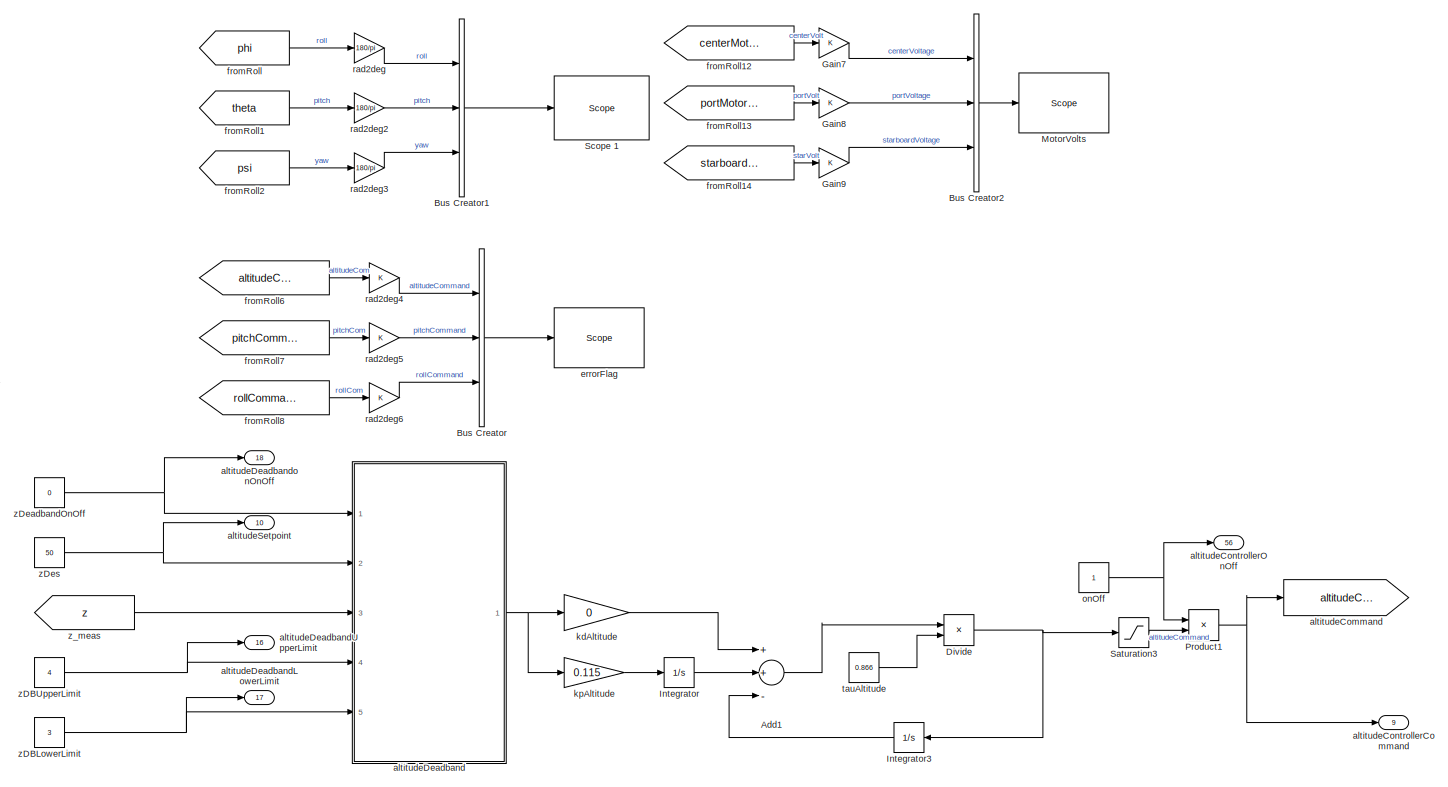
[diagram: root canvas - part 1/9, top center region]
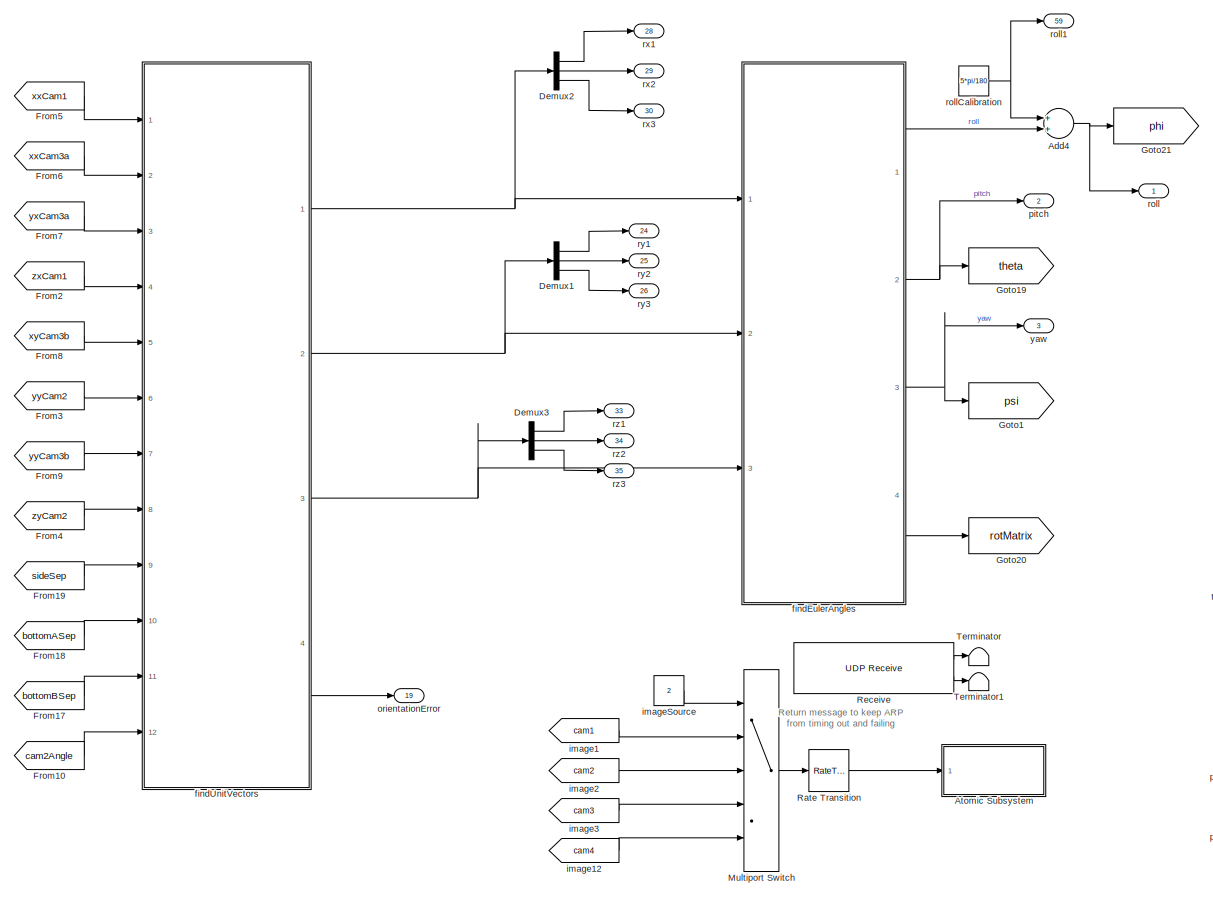
[diagram: root canvas - part 2/9, central region]
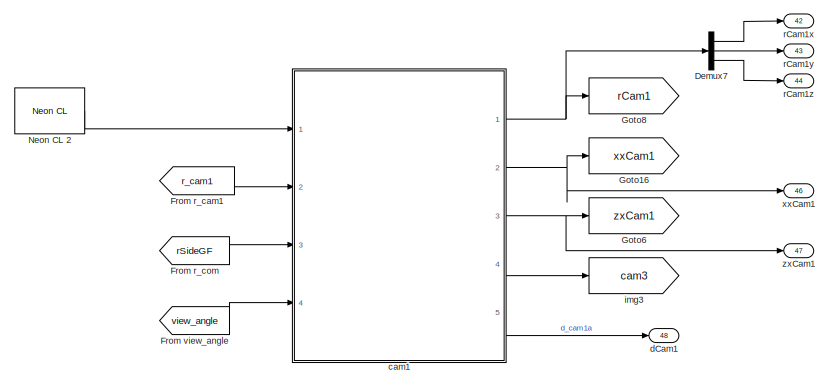
[diagram: root canvas - part 3/9, top left region]
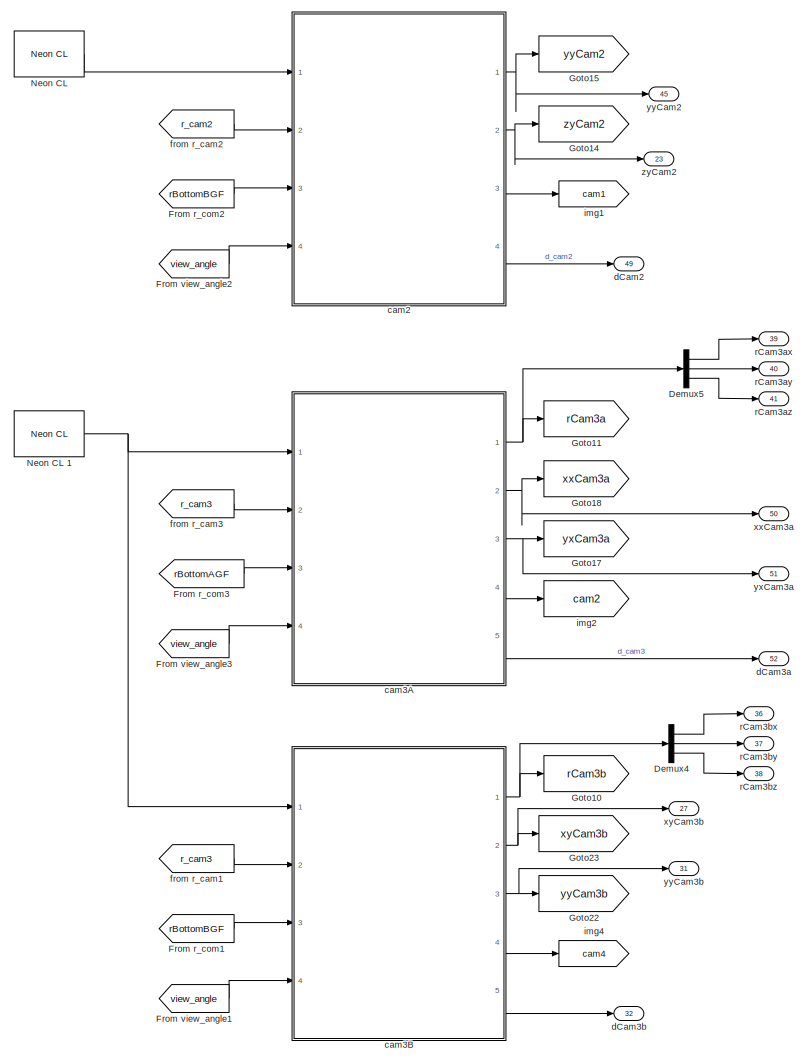
[diagram: root canvas - part 4/9, bottom left region]
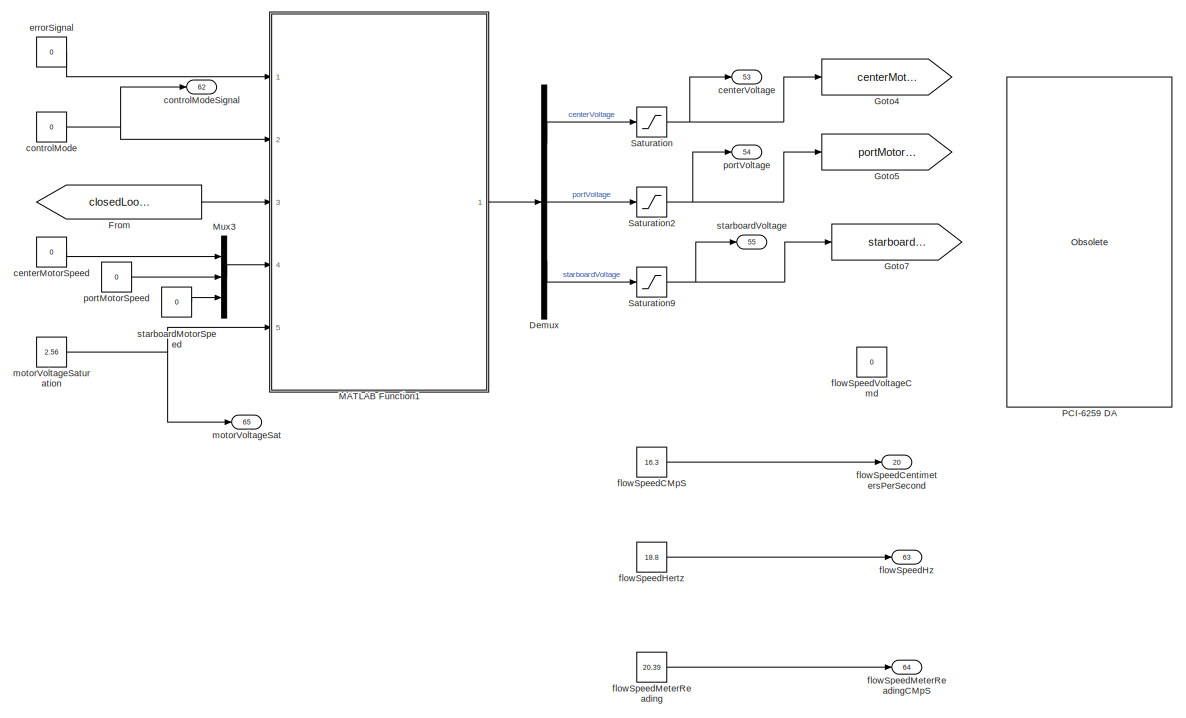
[diagram: root canvas - part 5/9, middle right region]
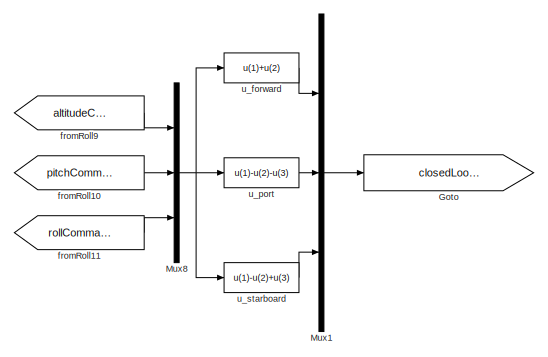
[diagram: root canvas - part 6/9, middle right region]
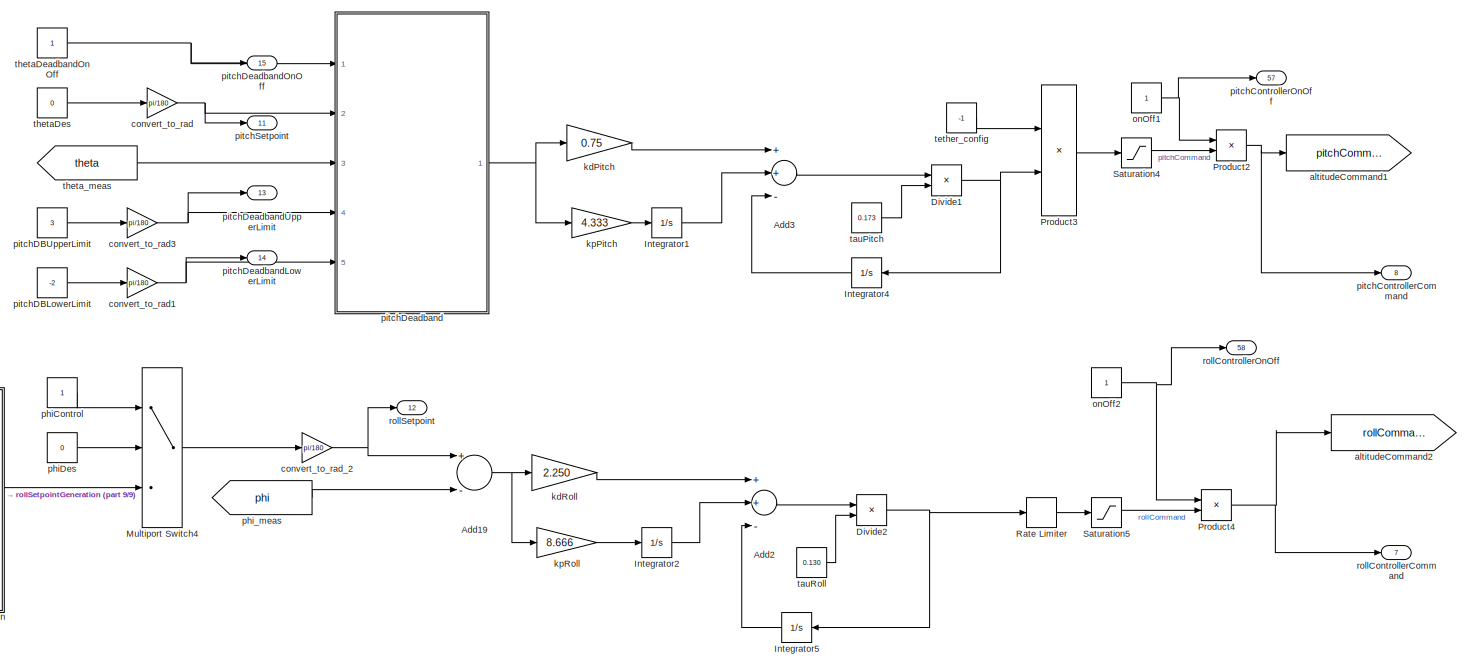
[diagram: root canvas - part 7/9, central region]
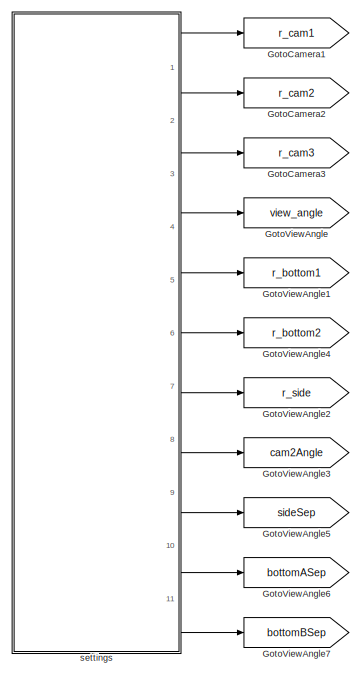
[diagram: root canvas - part 8/9, bottom left region]
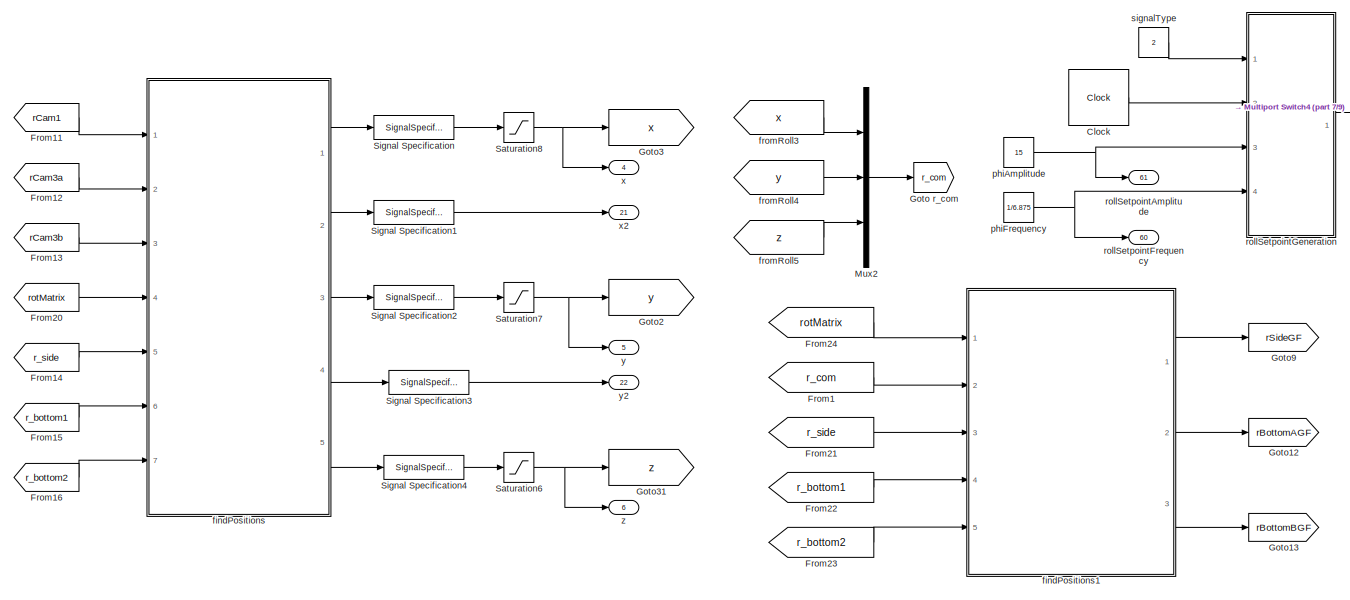
[diagram: root canvas - part 9/9, bottom left region]
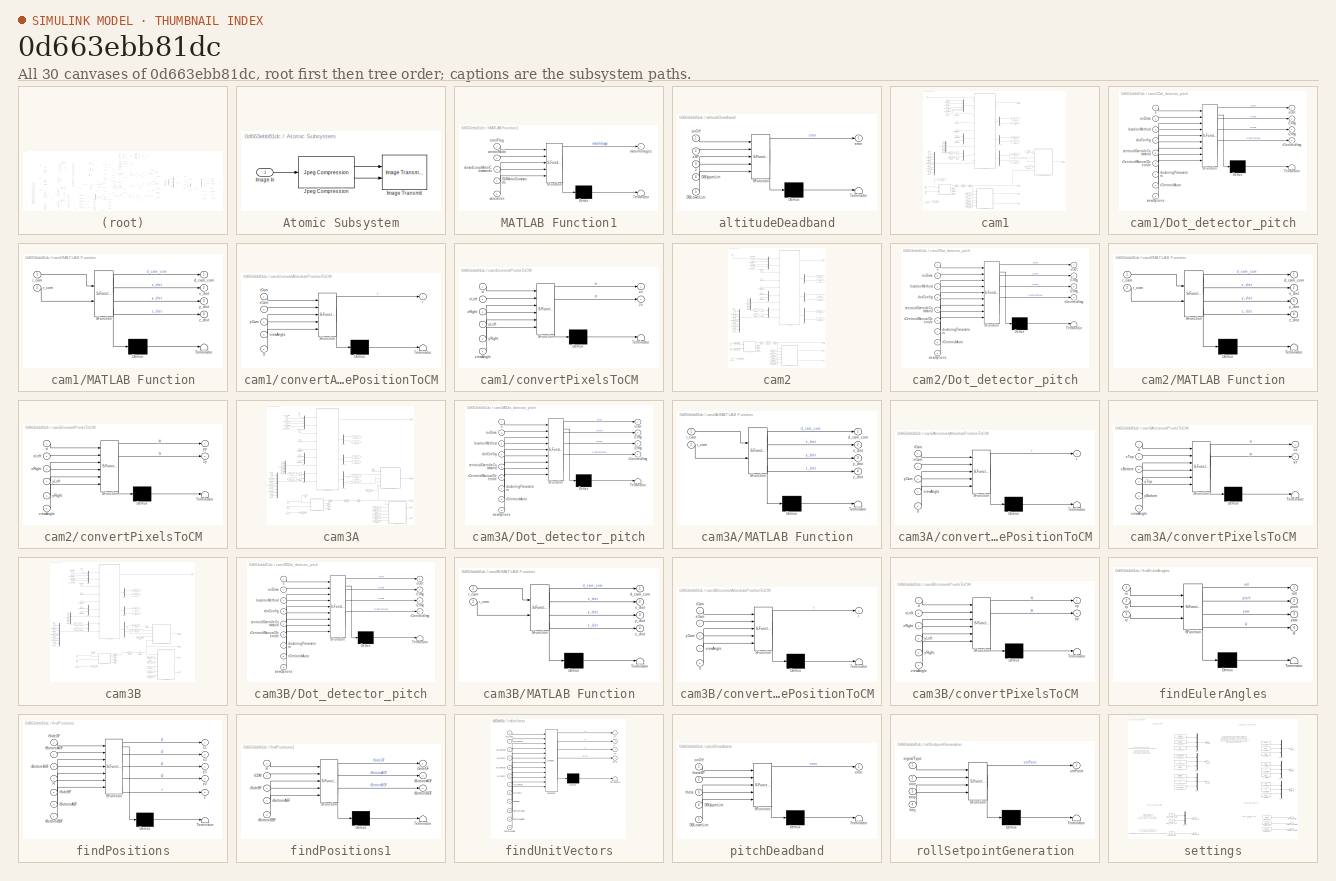
[diagram: thumbnail index - all 30 canvases of the model, root first then tree order]
MODEL slx_0d663ebb81dc
KIND model
CONFIG AbsTol = auto
CONFIG EnableMultiTasking = on
CONFIG FixedStep = 0.025
CONFIG MaxStep = auto
CONFIG MinStep = auto
CONFIG PreLoadFcn = preLoadCallback
CONFIG RelTol = 1e-3
CONFIG SampleTimeConstraint = Unconstrained
CONFIG Solver = ode4
CONFIG SolverName = ode4
CONFIG StartFcn = startCallback\n
CONFIG StartTime = 0.0
CONFIG StopFcn = stopCallback
CONFIG StopTime = Inf
WORKSPACE source: MAT-file member
WORKSPACE Ts = 0.025
BLOCK [Sum] Add1
  InputSameDT = off
  Inputs = ++-
  OutDataTypeStr = Inherit: Inherit via internal rule
  Ports = [3, 1]
  SaturateOnIntegerOverflow = off
BLOCK [Sum] Add19
  InputSameDT = off
  Inputs = +-
  OutDataTypeStr = Inherit: Inherit via internal rule
  Ports = [2, 1]
  SaturateOnIntegerOverflow = off
BLOCK [Sum] Add2
  InputSameDT = off
  Inputs = ++-
  OutDataTypeStr = Inherit: Inherit via internal rule
  Ports = [3, 1]
  SaturateOnIntegerOverflow = off
BLOCK [Sum] Add3
  InputSameDT = off
  Inputs = ++-
  OutDataTypeStr = Inherit: Inherit via internal rule
  Ports = [3, 1]
  SaturateOnIntegerOverflow = off
BLOCK [Sum] Add4
  InputSameDT = off
  OutDataTypeStr = Inherit: Inherit via internal rule
  Ports = [2, 1]
  SaturateOnIntegerOverflow = off
BLOCK [SubSystem] Atomic Subsystem
  Ports = [1]
  RequestExecContextInheritance = off
  SystemSampleTime = Ts*3
  TreatAsAtomicUnit = on
BLOCK [Inport] Atomic Subsystem/Image In
  IconDisplay = Port number
BLOCK [Reference] Atomic Subsystem/Image Transmit  REF=xpcvideoutillib/Image Transmit
  Ports = [2]
  SourceBlock = xpcvideoutillib/Image Transmit
  SourceProductBaseCode = XP
  SourceProductName = Simulink Real-Time
  SourceType = xpcimagetransmit
BLOCK [Reference] Atomic Subsystem/Jpeg Compression  REF=xpcvideoutillib/Jpeg Compression
  Ports = [1, 2]
  SourceBlock = xpcvideoutillib/Jpeg Compression
  SourceProductBaseCode = XP
  SourceProductName = Simulink Real-Time
  SourceType = CJPEG
BLOCK [BusCreator] Bus Creator
  DisplayOption = bar
  InheritFromInputs = on
  Inputs = 3
  Ports = [3, 1]
BLOCK [BusCreator] Bus Creator1
  DisplayOption = bar
  InheritFromInputs = on
  Inputs = 3
  Ports = [3, 1]
BLOCK [BusCreator] Bus Creator2
  DisplayOption = bar
  InheritFromInputs = on
  Inputs = 3
  Ports = [3, 1]
BLOCK [Clock] Clock
  DisplayTime = on
BLOCK [Demux] Demux
  DisplayOption = bar
  Outputs = 3
  Ports = [1, 3]
BLOCK [Demux] Demux1
  DisplayOption = bar
  Outputs = 3
  Ports = [1, 3]
BLOCK [Demux] Demux2
  DisplayOption = bar
  Outputs = 3
  Ports = [1, 3]
BLOCK [Demux] Demux3
  DisplayOption = bar
  Outputs = 3
  Ports = [1, 3]
BLOCK [Demux] Demux4
  DisplayOption = bar
  Outputs = 3
  Ports = [1, 3]
BLOCK [Demux] Demux5
  DisplayOption = bar
  Outputs = 3
  Ports = [1, 3]
BLOCK [Demux] Demux7
  DisplayOption = bar
  Outputs = 3
  Ports = [1, 3]
BLOCK [Product] Divide
  InputSameDT = off
  Inputs = */
  OutDataTypeStr = Inherit: Inherit via internal rule
  Ports = [2, 1]
  RndMeth = Floor
  SaturateOnIntegerOverflow = off
BLOCK [Product] Divide1
  InputSameDT = off
  Inputs = */
  OutDataTypeStr = Inherit: Inherit via internal rule
  Ports = [2, 1]
  RndMeth = Floor
  SaturateOnIntegerOverflow = off
BLOCK [Product] Divide2
  InputSameDT = off
  Inputs = */
  OutDataTypeStr = Inherit: Inherit via internal rule
  Ports = [2, 1]
  RndMeth = Floor
  SaturateOnIntegerOverflow = off
BLOCK [From] From
  GotoTag = closedLoopMotorCommands
BLOCK [From] From r_cam1
  GotoTag = r_cam1
BLOCK [From] From r_com
  GotoTag = rSideGF
BLOCK [From] From r_com1
  GotoTag = rBottomBGF
BLOCK [From] From r_com2
  GotoTag = rBottomBGF
BLOCK [From] From r_com3
  GotoTag = rBottomAGF
BLOCK [From] From view_angle
  GotoTag = view_angle
BLOCK [From] From view_angle1
  GotoTag = view_angle
BLOCK [From] From view_angle2
  GotoTag = view_angle
BLOCK [From] From view_angle3
  GotoTag = view_angle
BLOCK [From] From1
  GotoTag = r_com
BLOCK [From] From10
  GotoTag = cam2Angle
BLOCK [From] From11
  GotoTag = rCam1
BLOCK [From] From12
  GotoTag = rCam3a
BLOCK [From] From13
  GotoTag = rCam3b
BLOCK [From] From14
  GotoTag = r_side
BLOCK [From] From15
  GotoTag = r_bottom1
BLOCK [From] From16
  GotoTag = r_bottom2
BLOCK [From] From17
  GotoTag = bottomBSep
BLOCK [From] From18
  GotoTag = bottomASep
BLOCK [From] From19
  GotoTag = sideSep
BLOCK [From] From2
  GotoTag = zxCam1
BLOCK [From] From20
  GotoTag = rotMatrix
BLOCK [From] From21
  GotoTag = r_side
BLOCK [From] From22
  GotoTag = r_bottom1
BLOCK [From] From23
  GotoTag = r_bottom2
BLOCK [From] From24
  GotoTag = rotMatrix
BLOCK [From] From3
  GotoTag = yyCam2
BLOCK [From] From4
  GotoTag = zyCam2
BLOCK [From] From5
  GotoTag = xxCam1
BLOCK [From] From6
  GotoTag = xxCam3a
BLOCK [From] From7
  GotoTag = yxCam3a
BLOCK [From] From8
  GotoTag = xyCam3b
BLOCK [From] From9
  GotoTag = yyCam3b
BLOCK [Gain] Gain7
  OutDataTypeStr = Inherit: Inherit via internal rule
  ParamDataTypeStr = Inherit: Inherit via internal rule
  SaturateOnIntegerOverflow = off
BLOCK [Gain] Gain8
  OutDataTypeStr = Inherit: Inherit via internal rule
  ParamDataTypeStr = Inherit: Inherit via internal rule
  SaturateOnIntegerOverflow = off
BLOCK [Gain] Gain9
  OutDataTypeStr = Inherit: Inherit via internal rule
  ParamDataTypeStr = Inherit: Inherit via internal rule
  SaturateOnIntegerOverflow = off
BLOCK [Goto] Goto
  GotoTag = closedLoopMotorCommands
BLOCK [Goto] Goto r_com
  GotoTag = r_com
BLOCK [Goto] Goto1
  GotoTag = psi
BLOCK [Goto] Goto10
  GotoTag = rCam3b
BLOCK [Goto] Goto11
  GotoTag = rCam3a
BLOCK [Goto] Goto12
  GotoTag = rBottomAGF
BLOCK [Goto] Goto13
  GotoTag = rBottomBGF
BLOCK [Goto] Goto14
  GotoTag = zyCam2
BLOCK [Goto] Goto15
  GotoTag = yyCam2
BLOCK [Goto] Goto16
  GotoTag = xxCam1
BLOCK [Goto] Goto17
  GotoTag = yxCam3a
BLOCK [Goto] Goto18
  GotoTag = xxCam3a
BLOCK [Goto] Goto19
  GotoTag = theta
BLOCK [Goto] Goto2
  GotoTag = y
BLOCK [Goto] Goto20
  GotoTag = rotMatrix
BLOCK [Goto] Goto21
  GotoTag = phi
BLOCK [Goto] Goto22
  GotoTag = yyCam3b
BLOCK [Goto] Goto23
  GotoTag = xyCam3b
BLOCK [Goto] Goto3
  GotoTag = x
BLOCK [Goto] Goto31
  GotoTag = z
BLOCK [Goto] Goto4
  GotoTag = centerMotorVoltage
BLOCK [Goto] Goto5
  GotoTag = portMotorVoltage
BLOCK [Goto] Goto6
  GotoTag = zxCam1
BLOCK [Goto] Goto7
  GotoTag = starboardMotorVoltage
BLOCK [Goto] Goto8
  GotoTag = rCam1
BLOCK [Goto] Goto9
  GotoTag = rSideGF
BLOCK [Goto] GotoCamera1
  GotoTag = r_cam1
BLOCK [Goto] GotoCamera2
  GotoTag = r_cam2
BLOCK [Goto] GotoCamera3
  GotoTag = r_cam3
BLOCK [Goto] GotoViewAngle
  GotoTag = view_angle
BLOCK [Goto] GotoViewAngle1
  GotoTag = r_bottom1
BLOCK [Goto] GotoViewAngle2
  GotoTag = r_side
BLOCK [Goto] GotoViewAngle3
  GotoTag = cam2Angle
BLOCK [Goto] GotoViewAngle4
  GotoTag = r_bottom2
BLOCK [Goto] GotoViewAngle5
  GotoTag = sideSep
BLOCK [Goto] GotoViewAngle6
  GotoTag = bottomASep
BLOCK [Goto] GotoViewAngle7
  GotoTag = bottomBSep
BLOCK [Integrator] Integrator
  InitialCondition = 0.001
  Ports = [1, 1]
BLOCK [Integrator] Integrator1
  InitialCondition = 0.001
  Ports = [1, 1]
BLOCK [Integrator] Integrator2
  InitialCondition = 0.001
  Ports = [1, 1]
BLOCK [Integrator] Integrator3
  InitialCondition = 0.001
  Ports = [1, 1]
BLOCK [Integrator] Integrator4
  InitialCondition = 0.001
  Ports = [1, 1]
BLOCK [Integrator] Integrator5
  InitialCondition = 0.001
  Ports = [1, 1]
BLOCK [SubSystem] MATLAB Function1
  ErrorFcn = Stateflow.Translate.translate
  PermitHierarchicalResolution = ExplicitOnly
  Ports = [5, 1]
  RequestExecContextInheritance = off
  SFBlockType = MATLAB Function
  TreatAsAtomicUnit = on
BLOCK [Demux] MATLAB Function1/ Demux 
  Outputs = 1
  Ports = [1, 1]
BLOCK [S-Function] MATLAB Function1/ SFunction 
  EnableBusSupport = off
  FunctionName = sf_sfun
  PortCounts = [5 2]
  Ports = [5, 2]
  SFcnIsStateOwnerBlock = off
  SFunctionDeploymentMode = off
  Tag = Stateflow S-Function UNCCModel 19
BLOCK [Terminator] MATLAB Function1/ Terminator 
BLOCK [Inport] MATLAB Function1/GUIMotorCommands
  IconDisplay = Port number
  Port = 4
BLOCK [Inport] MATLAB Function1/closedLoopMotorCommands
  IconDisplay = Port number
  Port = 3
BLOCK [Inport] MATLAB Function1/controlMode
  IconDisplay = Port number
  Port = 2
BLOCK [Inport] MATLAB Function1/errorFlag
  IconDisplay = Port number
BLOCK [Outport] MATLAB Function1/motorVoltages
  IconDisplay = Port number
BLOCK [Inport] MATLAB Function1/saturation
  IconDisplay = Port number
  Port = 5
BLOCK [Reference] MotorVolts   REF=slrtlib/Displays and
Logging/Scope 
  Ports = [1]
  Priority = 2
  SourceBlock = slrtlib/Displays and\nLogging/Scope
  SourceProductBaseCode = XP
  SourceProductName = Simulink Real-Time
  SourceType = xpcscopeblock
  Tag = Motor Volts
BLOCK [MultiPortSwitch] Multiport Switch
  DataPortOrder = Zero-based contiguous
  InputSameDT = off
  Inputs = 4
  Ports = [5, 1]
  SaturateOnIntegerOverflow = off
  zeroidx = on
BLOCK [MultiPortSwitch] Multiport Switch4
  InputSameDT = off
  Inputs = 2
  Ports = [3, 1]
  SaturateOnIntegerOverflow = off
BLOCK [Mux] Mux1
  DisplayOption = bar
  Inputs = 3
  Ports = [3, 1]
BLOCK [Mux] Mux2
  DisplayOption = bar
  Inputs = 3
  Ports = [3, 1]
BLOCK [Mux] Mux3
  DisplayOption = bar
  Inputs = 3
  Ports = [3, 1]
BLOCK [Mux] Mux8
  DisplayOption = bar
  Inputs = 3
  Ports = [3, 1]
BLOCK [Reference] Neon CL   REF=xpcbitflowlib/Neon CL 
  Ports = [0, 1]
  SourceBlock = xpcbitflowlib/Neon CL
  SourceProductName = Simulink Real-Time: Speedgoat I/O Driver Library
  SourceType = bfneon
BLOCK [Reference] Neon CL 1  REF=xpcbitflowlib/Neon CL 
  Ports = [0, 1]
  SourceBlock = xpcbitflowlib/Neon CL
  SourceProductName = Simulink Real-Time: Speedgoat I/O Driver Library
  SourceType = bfneon
BLOCK [Reference] Neon CL 2  REF=xpcbitflowlib/Neon CL 
  Ports = [0, 1]
  SourceBlock = xpcbitflowlib/Neon CL
  SourceProductName = Simulink Real-Time: Speedgoat I/O Driver Library
  SourceType = bfneon
BLOCK [Reference] PCI-6259 DA  REF=xpcobsoletelib/Obsolete
  Ports = []
  SourceBlock = xpcobsoletelib/Obsolete
  SourceProductBaseCode = XP
  SourceProductName = Simulink Real-Time
BLOCK [Product] Product1
  InputSameDT = off
  OutDataTypeStr = Inherit: Inherit via internal rule
  Ports = [2, 1]
  RndMeth = Floor
  SaturateOnIntegerOverflow = off
BLOCK [Product] Product2
  InputSameDT = off
  OutDataTypeStr = Inherit: Inherit via internal rule
  Ports = [2, 1]
  RndMeth = Floor
  SaturateOnIntegerOverflow = off
BLOCK [Product] Product3
  InputSameDT = off
  OutDataTypeStr = Inherit: Inherit via internal rule
  Ports = [2, 1]
  RndMeth = Floor
  SaturateOnIntegerOverflow = off
BLOCK [Product] Product4
  InputSameDT = off
  OutDataTypeStr = Inherit: Inherit via internal rule
  Ports = [2, 1]
  RndMeth = Floor
  SaturateOnIntegerOverflow = off
BLOCK [RateLimiter] Rate Limiter
  FallingSlewLimit = -20
  RisingSlewLimit = 20
  SampleTimeMode = inherited
BLOCK [RateTransition] Rate Transition
BLOCK [Reference] Receive  REF=xpcrtudplib/UDP Receive
  Ports = [0, 2]
  SourceBlock = xpcrtudplib/UDP Receive
  SourceProductBaseCode = XP
  SourceProductName = Simulink Real-Time
  SourceType = slrtudpreceive
BLOCK [Saturate] Saturation
  InputPortMap = u0
  LowerLimit = 0
  Ports = [1, 1]
  UpperLimit = 3.3
BLOCK [Saturate] Saturation2
  InputPortMap = u0
  LowerLimit = 0
  Ports = [1, 1]
  UpperLimit = 3.3
BLOCK [Saturate] Saturation3
  InputPortMap = u0
  LowerLimit = -1.65
  Ports = [1, 1]
  UpperLimit = 1.65
BLOCK [Saturate] Saturation4
  InputPortMap = u0
  LowerLimit = -1.65
  Ports = [1, 1]
  UpperLimit = 1.65
BLOCK [Saturate] Saturation5
  InputPortMap = u0
  LowerLimit = -1.65
  Ports = [1, 1]
  UpperLimit = 1.65
BLOCK [Saturate] Saturation6
  InputPortMap = u0
  LowerLimit = 10
  Ports = [1, 1]
  UpperLimit = 90
BLOCK [Saturate] Saturation7
  InputPortMap = u0
  LowerLimit = -50
  Ports = [1, 1]
  UpperLimit = 50
BLOCK [Saturate] Saturation8
  InputPortMap = u0
  LowerLimit = -10
  Ports = [1, 1]
  UpperLimit = 100
BLOCK [Saturate] Saturation9
  InputPortMap = u0
  LowerLimit = 0
  Ports = [1, 1]
  UpperLimit = 3.3
BLOCK [Reference] Scope 1  REF=slrtlib/Displays and
Logging/Scope 
  Ports = [1]
  SourceBlock = slrtlib/Displays and\nLogging/Scope
  SourceProductBaseCode = XP
  SourceProductName = Simulink Real-Time
  SourceType = xpcscopeblock
BLOCK [SignalSpecification] Signal Specification
  Dimensions = 1
  VarSizeSig = No
BLOCK [SignalSpecification] Signal Specification1
  Dimensions = 1
  VarSizeSig = No
BLOCK [SignalSpecification] Signal Specification2
  Dimensions = 1
  VarSizeSig = No
BLOCK [SignalSpecification] Signal Specification3
  Dimensions = 1
  VarSizeSig = No
BLOCK [SignalSpecification] Signal Specification4
  Dimensions = 1
  VarSizeSig = No
BLOCK [Terminator] Terminator
BLOCK [Terminator] Terminator1
BLOCK [Goto] altitudeCommand
  GotoTag = altitudeCommand
BLOCK [Goto] altitudeCommand1
  GotoTag = pitchCommand
BLOCK [Goto] altitudeCommand2
  GotoTag = rollCommand
BLOCK [Outport] altitudeControllerCommand
  IconDisplay = Port number
  Port = 9
BLOCK [Outport] altitudeControllerOnOff
  IconDisplay = Port number
  Port = 56
BLOCK [SubSystem] altitudeDeadband
  ErrorFcn = Stateflow.Translate.translate
  PermitHierarchicalResolution = ExplicitOnly
  Ports = [5, 1]
  RequestExecContextInheritance = off
  SFBlockType = MATLAB Function
  TreatAsAtomicUnit = on
BLOCK [Demux] altitudeDeadband/ Demux 
  Outputs = 1
  Ports = [1, 1]
BLOCK [S-Function] altitudeDeadband/ SFunction 
  EnableBusSupport = off
  FunctionName = sf_sfun
  PortCounts = [5 2]
  Ports = [5, 2]
  SFcnIsStateOwnerBlock = off
  SFunctionDeploymentMode = off
  Tag = Stateflow S-Function UNCCModel 22
BLOCK [Terminator] altitudeDeadband/ Terminator 
BLOCK [Inport] altitudeDeadband/DBLowerLim
  IconDisplay = Port number
  Port = 5
BLOCK [Inport] altitudeDeadband/DBUpperLim
  IconDisplay = Port number
  Port = 4
BLOCK [Outport] altitudeDeadband/error
  IconDisplay = Port number
BLOCK [Inport] altitudeDeadband/onOff
  IconDisplay = Port number
BLOCK [Inport] altitudeDeadband/z
  IconDisplay = Port number
  Port = 3
BLOCK [Inport] altitudeDeadband/zSP
  IconDisplay = Port number
  Port = 2
BLOCK [Outport] altitudeDeadbandLowerLimit
  IconDisplay = Port number
  Port = 17
BLOCK [Outport] altitudeDeadbandUpperLimit
  IconDisplay = Port number
  Port = 16
BLOCK [Outport] altitudeDeadbandonOnOff
  IconDisplay = Port number
  Port = 18
BLOCK [Outport] altitudeSetpoint
  IconDisplay = Port number
  Port = 10
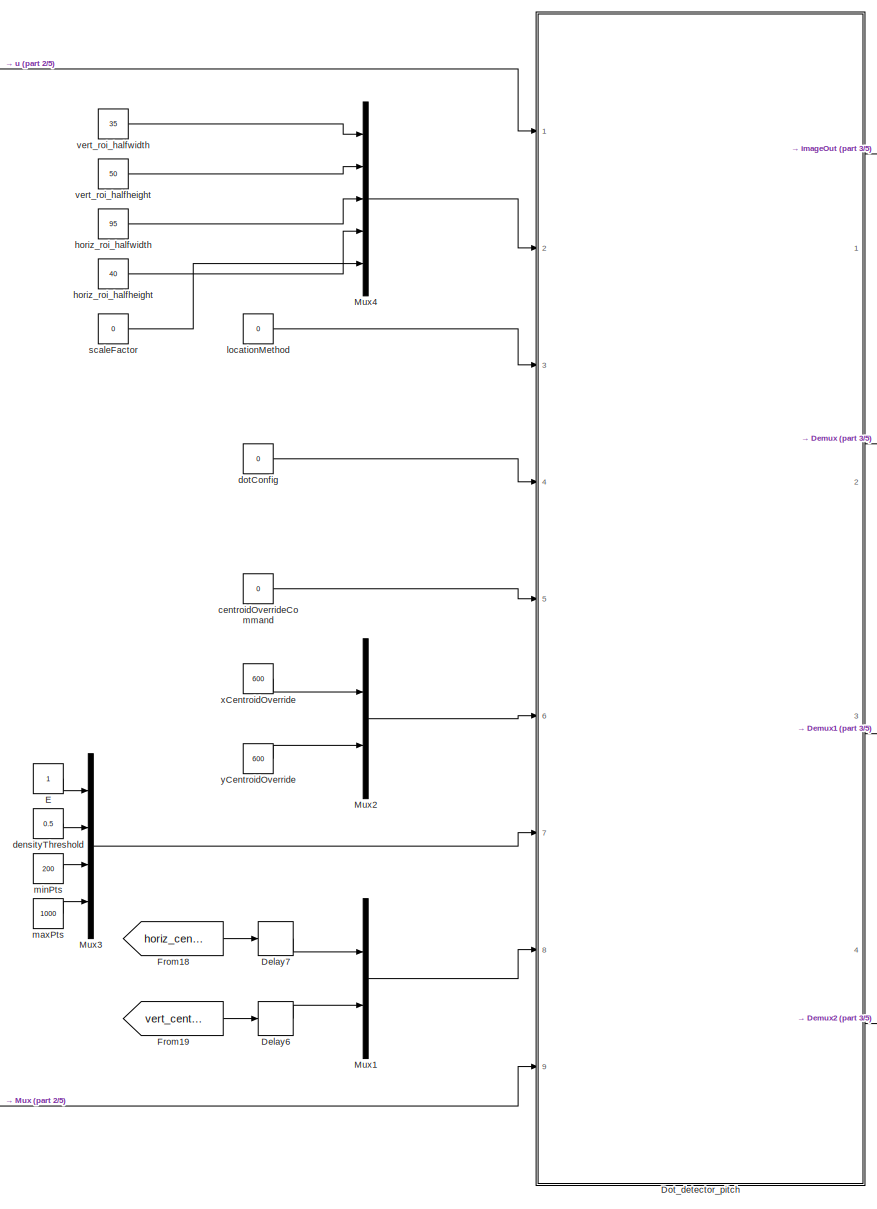
[diagram: cam1 - part 1/5, middle left region]
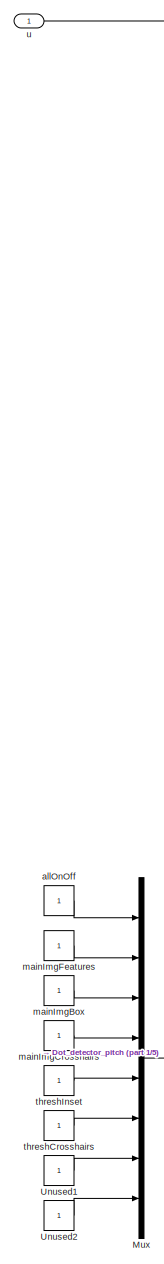
[diagram: cam1 - part 2/5, middle left region]
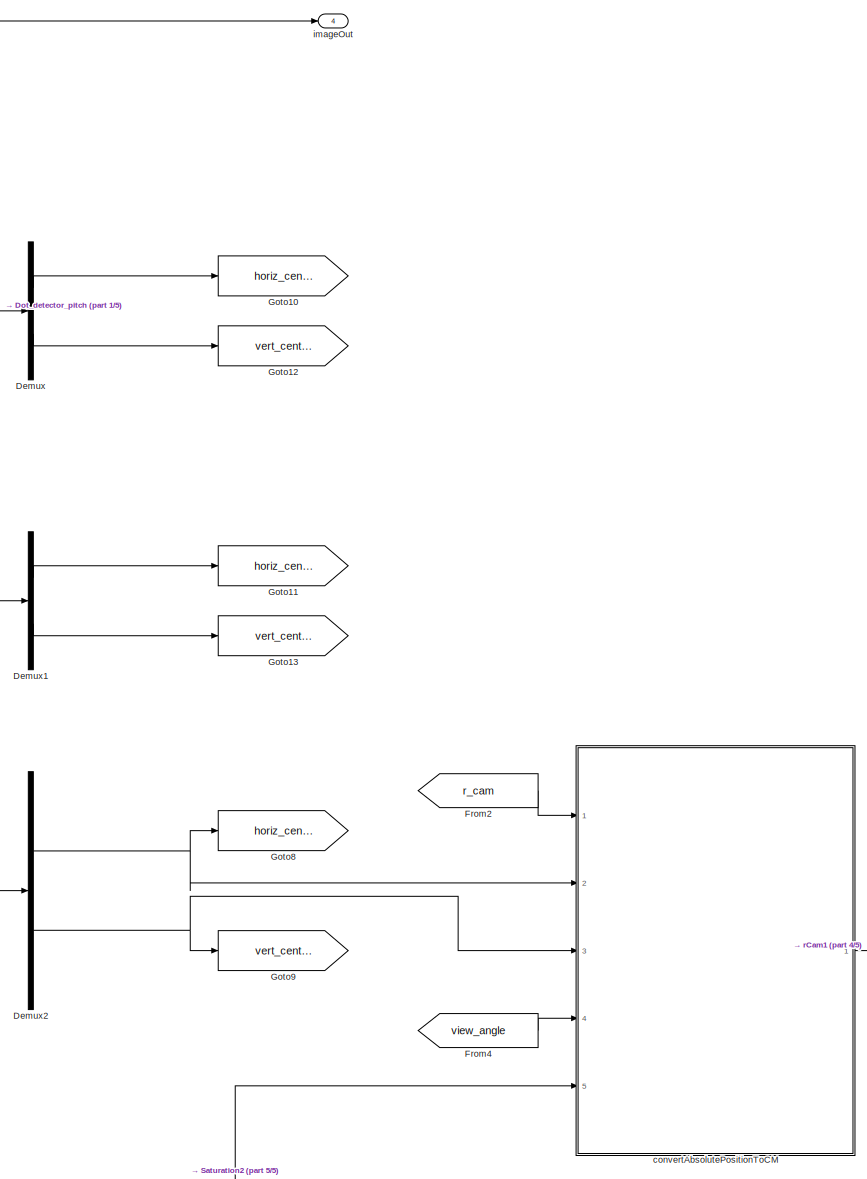
[diagram: cam1 - part 3/5, middle right region]
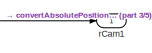
[diagram: cam1 - part 4/5, middle right region]
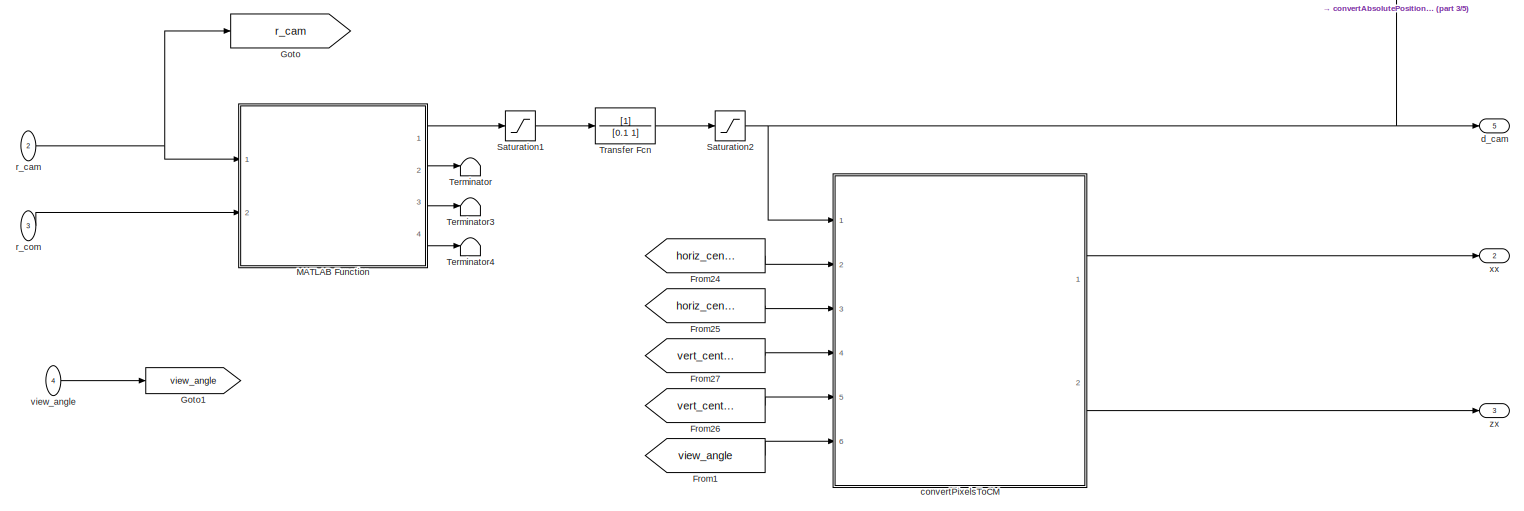
[diagram: cam1 - part 5/5, bottom center region]
BLOCK [SubSystem] cam1
  Ports = [4, 5]
  RequestExecContextInheritance = off
BLOCK [Delay] cam1/Delay6
  DelayLength = 1
  InitialCondition = 800
  InputPortMap = u0
  Ports = [1, 1]
BLOCK [Delay] cam1/Delay7
  DelayLength = 1
  InitialCondition = 1460
  InputPortMap = u0
  Ports = [1, 1]
BLOCK [Demux] cam1/Demux
  DisplayOption = bar
  Outputs = 2
  Ports = [1, 2]
BLOCK [Demux] cam1/Demux1
  DisplayOption = bar
  Outputs = 2
  Ports = [1, 2]
BLOCK [Demux] cam1/Demux2
  DisplayOption = bar
  Outputs = 2
  Ports = [1, 2]
BLOCK [SubSystem] cam1/Dot_detector_pitch
  ErrorFcn = Stateflow.Translate.translate
  PermitHierarchicalResolution = ExplicitOnly
  Ports = [9, 4]
  RequestExecContextInheritance = off
  SFBlockType = MATLAB Function
  TreatAsAtomicUnit = on
BLOCK [Demux] cam1/Dot_detector_pitch/ Demux 
  Outputs = 1
  Ports = [1, 1]
BLOCK [S-Function] cam1/Dot_detector_pitch/ SFunction 
  EnableBusSupport = off
  FunctionName = sf_sfun
  PortCounts = [9 5]
  Ports = [9, 5]
  SFcnIsStateOwnerBlock = off
  SFunctionDeploymentMode = off
  Tag = Stateflow S-Function UNCCModel 21
BLOCK [Terminator] cam1/Dot_detector_pitch/ Terminator 
BLOCK [Inport] cam1/Dot_detector_pitch/centroidOverrideCommand
  IconDisplay = Port number
  Port = 5
BLOCK [Inport] cam1/Dot_detector_pitch/clusteringParameters
  IconDisplay = Port number
  Port = 7
BLOCK [Inport] cam1/Dot_detector_pitch/dotConfig
  IconDisplay = Port number
  Port = 4
BLOCK [Inport] cam1/Dot_detector_pitch/locationMethod
  IconDisplay = Port number
  Port = 3
BLOCK [Outport] cam1/Dot_detector_pitch/r1Img
  IconDisplay = Port number
  Port = 2
BLOCK [Outport] cam1/Dot_detector_pitch/r2Img
  IconDisplay = Port number
  Port = 3
BLOCK [Inport] cam1/Dot_detector_pitch/rCentroidAuto
  IconDisplay = Port number
  Port = 8
BLOCK [Outport] cam1/Dot_detector_pitch/rCentroidImg
  IconDisplay = Port number
  Port = 4
BLOCK [Inport] cam1/Dot_detector_pitch/rCentroidManualOverride
  IconDisplay = Port number
  Port = 6
BLOCK [Inport] cam1/Dot_detector_pitch/roiDims
  IconDisplay = Port number
  Port = 2
BLOCK [Inport] cam1/Dot_detector_pitch/u
  IconDisplay = Port number
BLOCK [Outport] cam1/Dot_detector_pitch/uOut
  IconDisplay = Port number
BLOCK [Inport] cam1/Dot_detector_pitch/viewOptions
  IconDisplay = Port number
  Port = 9
BLOCK [Constant] cam1/E
BLOCK [From] cam1/From1
  GotoTag = view_angle
BLOCK [From] cam1/From18
  GotoTag = horiz_centroid_r
BLOCK [From] cam1/From19
  GotoTag = vert_centroid_r
BLOCK [From] cam1/From2
  GotoTag = r_cam
BLOCK [From] cam1/From24
  GotoTag = horiz_centroid_top_r
BLOCK [From] cam1/From25
  GotoTag = horiz_centroid_bottom_r
BLOCK [From] cam1/From26
  GotoTag = vert_centroid_bottom_r
BLOCK [From] cam1/From27
  GotoTag = vert_centroid_top_r
BLOCK [From] cam1/From4
  GotoTag = view_angle
BLOCK [Goto] cam1/Goto
  GotoTag = r_cam
BLOCK [Goto] cam1/Goto1
  GotoTag = view_angle
BLOCK [Goto] cam1/Goto10
  GotoTag = horiz_centroid_top_r
BLOCK [Goto] cam1/Goto11
  GotoTag = horiz_centroid_bottom_r
BLOCK [Goto] cam1/Goto12
  GotoTag = vert_centroid_top_r
BLOCK [Goto] cam1/Goto13
  GotoTag = vert_centroid_bottom_r
BLOCK [Goto] cam1/Goto8
  GotoTag = horiz_centroid_r
BLOCK [Goto] cam1/Goto9
  GotoTag = vert_centroid_r
BLOCK [SubSystem] cam1/MATLAB Function
  ErrorFcn = Stateflow.Translate.translate
  PermitHierarchicalResolution = ExplicitOnly
  Ports = [2, 4]
  RequestExecContextInheritance = off
  SFBlockType = MATLAB Function
  TreatAsAtomicUnit = on
BLOCK [Demux] cam1/MATLAB Function/ Demux 
  Outputs = 1
  Ports = [1, 1]
BLOCK [S-Function] cam1/MATLAB Function/ SFunction 
  EnableBusSupport = off
  FunctionName = sf_sfun
  PortCounts = [2 5]
  Ports = [2, 5]
  SFcnIsStateOwnerBlock = off
  SFunctionDeploymentMode = off
  Tag = Stateflow S-Function UNCCModel 25
BLOCK [Terminator] cam1/MATLAB Function/ Terminator 
BLOCK [Outport] cam1/MATLAB Function/d_cam_com
  IconDisplay = Port number
BLOCK [Inport] cam1/MATLAB Function/r_cam
  IconDisplay = Port number
BLOCK [Inport] cam1/MATLAB Function/r_com
  IconDisplay = Port number
  Port = 2
BLOCK [Outport] cam1/MATLAB Function/x_dist
  IconDisplay = Port number
  Port = 2
BLOCK [Outport] cam1/MATLAB Function/y_dist
  IconDisplay = Port number
  Port = 3
BLOCK [Outport] cam1/MATLAB Function/z_dist
  IconDisplay = Port number
  Port = 4
BLOCK [Mux] cam1/Mux
  DisplayOption = bar
  Inputs = 8
  Ports = [8, 1]
BLOCK [Mux] cam1/Mux1
  DisplayOption = bar
  Inputs = 2
  Ports = [2, 1]
BLOCK [Mux] cam1/Mux2
  DisplayOption = bar
  Inputs = 2
  Ports = [2, 1]
BLOCK [Mux] cam1/Mux3
  DisplayOption = bar
  Ports = [4, 1]
BLOCK [Mux] cam1/Mux4
  DisplayOption = bar
  Inputs = 5
  Ports = [5, 1]
BLOCK [Saturate] cam1/Saturation1
  InputPortMap = u0
  LowerLimit = 1
  Ports = [1, 1]
  UpperLimit = 200
BLOCK [Saturate] cam1/Saturation2
  InputPortMap = u0
  LowerLimit = 1
  Ports = [1, 1]
  UpperLimit = 200
BLOCK [Terminator] cam1/Terminator
BLOCK [Terminator] cam1/Terminator3
BLOCK [Terminator] cam1/Terminator4
BLOCK [TransferFcn] cam1/Transfer Fcn
  Denominator = [0.1 1]
BLOCK [Constant] cam1/Unused1
BLOCK [Constant] cam1/Unused2
BLOCK [Constant] cam1/allOnOff
BLOCK [Constant] cam1/centroidOverrideCommand
  Value = 0
BLOCK [SubSystem] cam1/convertAbsolutePositionToCM
  ErrorFcn = Stateflow.Translate.translate
  PermitHierarchicalResolution = ExplicitOnly
  Ports = [5, 1]
  RequestExecContextInheritance = off
  SFBlockType = MATLAB Function
  TreatAsAtomicUnit = on
BLOCK [Demux] cam1/convertAbsolutePositionToCM/ Demux 
  Outputs = 1
  Ports = [1, 1]
BLOCK [S-Function] cam1/convertAbsolutePositionToCM/ SFunction 
  EnableBusSupport = off
  FunctionName = sf_sfun
  PortCounts = [5 2]
  Ports = [5, 2]
  SFcnIsStateOwnerBlock = off
  SFunctionDeploymentMode = off
  Tag = Stateflow S-Function UNCCModel 27
BLOCK [Terminator] cam1/convertAbsolutePositionToCM/ Terminator 
BLOCK [Inport] cam1/convertAbsolutePositionToCM/d
  IconDisplay = Port number
  Port = 5
BLOCK [Outport] cam1/convertAbsolutePositionToCM/r
  IconDisplay = Port number
BLOCK [Inport] cam1/convertAbsolutePositionToCM/rCam
  IconDisplay = Port number
BLOCK [Inport] cam1/convertAbsolutePositionToCM/viewAngle
  IconDisplay = Port number
  Port = 4
BLOCK [Inport] cam1/convertAbsolutePositionToCM/xCam
  IconDisplay = Port number
  Port = 2
BLOCK [Inport] cam1/convertAbsolutePositionToCM/yCam
  IconDisplay = Port number
  Port = 3
BLOCK [SubSystem] cam1/convertPixelsToCM
  ErrorFcn = Stateflow.Translate.translate
  PermitHierarchicalResolution = ExplicitOnly
  Ports = [6, 2]
  RequestExecContextInheritance = off
  SFBlockType = MATLAB Function
  TreatAsAtomicUnit = on
BLOCK [Demux] cam1/convertPixelsToCM/ Demux 
  Outputs = 1
  Ports = [1, 1]
BLOCK [S-Function] cam1/convertPixelsToCM/ SFunction 
  EnableBusSupport = off
  FunctionName = sf_sfun
  PortCounts = [6 3]
  Ports = [6, 3]
  SFcnIsStateOwnerBlock = off
  SFunctionDeploymentMode = off
  Tag = Stateflow S-Function UNCCModel 26
BLOCK [Terminator] cam1/convertPixelsToCM/ Terminator 
BLOCK [Inport] cam1/convertPixelsToCM/d
  IconDisplay = Port number
BLOCK [Inport] cam1/convertPixelsToCM/viewAngle
  IconDisplay = Port number
  Port = 6
BLOCK [Inport] cam1/convertPixelsToCM/xLeft
  IconDisplay = Port number
  Port = 2
BLOCK [Inport] cam1/convertPixelsToCM/xRight
  IconDisplay = Port number
  Port = 3
BLOCK [Outport] cam1/convertPixelsToCM/xx
  IconDisplay = Port number
BLOCK [Inport] cam1/convertPixelsToCM/yLeft
  IconDisplay = Port number
  Port = 4
BLOCK [Inport] cam1/convertPixelsToCM/yRight
  IconDisplay = Port number
  Port = 5
BLOCK [Outport] cam1/convertPixelsToCM/zx
  IconDisplay = Port number
  Port = 2
BLOCK [Outport] cam1/d_cam
  IconDisplay = Port number
  Port = 5
BLOCK [Constant] cam1/densityThreshold
  Value = 0.5
BLOCK [Constant] cam1/dotConfig
  Value = 0
BLOCK [Constant] cam1/horiz_roi_halfheight
  Value = 40
BLOCK [Constant] cam1/horiz_roi_halfwidth
  Value = 95
BLOCK [Outport] cam1/imageOut
  IconDisplay = Port number
  Port = 4
BLOCK [Constant] cam1/locationMethod
  Value = 0
BLOCK [Constant] cam1/mainImgBox
BLOCK [Constant] cam1/mainImgCrosshairs
BLOCK [Constant] cam1/mainImgFeatures
BLOCK [Constant] cam1/maxPts
  Value = 1000
BLOCK [Constant] cam1/minPts
  Value = 200
BLOCK [Outport] cam1/rCam1
  IconDisplay = Port number
BLOCK [Inport] cam1/r_cam
  IconDisplay = Port number
  Port = 2
BLOCK [Inport] cam1/r_com 
  IconDisplay = Port number
  Port = 3
BLOCK [Constant] cam1/scaleFactor
  Value = 0
BLOCK [Constant] cam1/threshCrosshairs
BLOCK [Constant] cam1/threshInset
BLOCK [Inport] cam1/u 
  IconDisplay = Port number
BLOCK [Constant] cam1/vert_roi_halfheight
  Value = 50
BLOCK [Constant] cam1/vert_roi_halfwidth
  Value = 35
BLOCK [Inport] cam1/view_angle
  IconDisplay = Port number
  Port = 4
BLOCK [Constant] cam1/xCentroidOverride
  Value = 600
BLOCK [Outport] cam1/xx
  IconDisplay = Port number
  Port = 2
BLOCK [Constant] cam1/yCentroidOverride
  Value = 600
BLOCK [Outport] cam1/zx
  IconDisplay = Port number
  Port = 3
BLOCK [SubSystem] cam2
  Ports = [4, 4]
  RequestExecContextInheritance = off
BLOCK [Delay] cam2/Delay6
  DelayLength = 1
  InitialCondition = 800
  InputPortMap = u0
  Ports = [1, 1]
BLOCK [Delay] cam2/Delay7
  DelayLength = 1
  InitialCondition = 1460
  InputPortMap = u0
  Ports = [1, 1]
BLOCK [Demux] cam2/Demux
  DisplayOption = bar
  Outputs = 2
  Ports = [1, 2]
BLOCK [Demux] cam2/Demux1
  DisplayOption = bar
  Outputs = 2
  Ports = [1, 2]
BLOCK [Demux] cam2/Demux2
  DisplayOption = bar
  Outputs = 2
  Ports = [1, 2]
BLOCK [SubSystem] cam2/Dot_detector_pitch
  ErrorFcn = Stateflow.Translate.translate
  PermitHierarchicalResolution = ExplicitOnly
  Ports = [9, 4]
  RequestExecContextInheritance = off
  SFBlockType = MATLAB Function
  TreatAsAtomicUnit = on
BLOCK [Demux] cam2/Dot_detector_pitch/ Demux 
  Outputs = 1
  Ports = [1, 1]
BLOCK [S-Function] cam2/Dot_detector_pitch/ SFunction 
  EnableBusSupport = off
  FunctionName = sf_sfun
  PortCounts = [9 5]
  Ports = [9, 5]
  SFcnIsStateOwnerBlock = off
  SFunctionDeploymentMode = off
  Tag = Stateflow S-Function UNCCModel 5
BLOCK [Terminator] cam2/Dot_detector_pitch/ Terminator 
BLOCK [Inport] cam2/Dot_detector_pitch/centroidOverrideCommand
  IconDisplay = Port number
  Port = 5
BLOCK [Inport] cam2/Dot_detector_pitch/clusteringParameters
  IconDisplay = Port number
  Port = 7
BLOCK [Inport] cam2/Dot_detector_pitch/dotConfig
  IconDisplay = Port number
  Port = 4
BLOCK [Inport] cam2/Dot_detector_pitch/locationMethod
  IconDisplay = Port number
  Port = 3
BLOCK [Outport] cam2/Dot_detector_pitch/r1Img
  IconDisplay = Port number
  Port = 2
BLOCK [Outport] cam2/Dot_detector_pitch/r2Img
  IconDisplay = Port number
  Port = 3
BLOCK [Inport] cam2/Dot_detector_pitch/rCentroidAuto
  IconDisplay = Port number
  Port = 8
BLOCK [Outport] cam2/Dot_detector_pitch/rCentroidImg
  IconDisplay = Port number
  Port = 4
BLOCK [Inport] cam2/Dot_detector_pitch/rCentroidManualOverride
  IconDisplay = Port number
  Port = 6
BLOCK [Inport] cam2/Dot_detector_pitch/roiDims
  IconDisplay = Port number
  Port = 2
BLOCK [Inport] cam2/Dot_detector_pitch/u
  IconDisplay = Port number
BLOCK [Outport] cam2/Dot_detector_pitch/uOut
  IconDisplay = Port number
BLOCK [Inport] cam2/Dot_detector_pitch/viewOptions
  IconDisplay = Port number
  Port = 9
BLOCK [Constant] cam2/E
BLOCK [From] cam2/From1
  GotoTag = view_angle
BLOCK [From] cam2/From18
  GotoTag = horiz_centroid_r
BLOCK [From] cam2/From19
  GotoTag = vert_centroid_r
BLOCK [From] cam2/From24
  GotoTag = horiz_centroid_top_r
BLOCK [From] cam2/From25
  GotoTag = horiz_centroid_bottom_r
BLOCK [From] cam2/From26
  GotoTag = vert_centroid_bottom_r
BLOCK [From] cam2/From27
  GotoTag = vert_centroid_top_r
BLOCK [Goto] cam2/Goto1
  GotoTag = view_angle
BLOCK [Goto] cam2/Goto10
  GotoTag = horiz_centroid_top_r
BLOCK [Goto] cam2/Goto11
  GotoTag = horiz_centroid_bottom_r
BLOCK [Goto] cam2/Goto12
  GotoTag = vert_centroid_top_r
BLOCK [Goto] cam2/Goto13
  GotoTag = vert_centroid_bottom_r
BLOCK [Goto] cam2/Goto8
  GotoTag = horiz_centroid_r
BLOCK [Goto] cam2/Goto9
  GotoTag = vert_centroid_r
BLOCK [SubSystem] cam2/MATLAB Function
  ErrorFcn = Stateflow.Translate.translate
  PermitHierarchicalResolution = ExplicitOnly
  Ports = [2, 4]
  RequestExecContextInheritance = off
  SFBlockType = MATLAB Function
  TreatAsAtomicUnit = on
BLOCK [Demux] cam2/MATLAB Function/ Demux 
  Outputs = 1
  Ports = [1, 1]
BLOCK [S-Function] cam2/MATLAB Function/ SFunction 
  EnableBusSupport = off
  FunctionName = sf_sfun
  PortCounts = [2 5]
  Ports = [2, 5]
  SFcnIsStateOwnerBlock = off
  SFunctionDeploymentMode = off
  Tag = Stateflow S-Function UNCCModel 9
BLOCK [Terminator] cam2/MATLAB Function/ Terminator 
BLOCK [Outport] cam2/MATLAB Function/d_cam_com
  IconDisplay = Port number
BLOCK [Inport] cam2/MATLAB Function/r_cam
  IconDisplay = Port number
BLOCK [Inport] cam2/MATLAB Function/r_com
  IconDisplay = Port number
  Port = 2
BLOCK [Outport] cam2/MATLAB Function/x_dist
  IconDisplay = Port number
  Port = 2
BLOCK [Outport] cam2/MATLAB Function/y_dist
  IconDisplay = Port number
  Port = 3
BLOCK [Outport] cam2/MATLAB Function/z_dist
  IconDisplay = Port number
  Port = 4
BLOCK [Mux] cam2/Mux
  DisplayOption = bar
  Inputs = 8
  Ports = [8, 1]
BLOCK [Mux] cam2/Mux1
  DisplayOption = bar
  Inputs = 2
  Ports = [2, 1]
BLOCK [Mux] cam2/Mux2
  DisplayOption = bar
  Inputs = 2
  Ports = [2, 1]
BLOCK [Mux] cam2/Mux3
  DisplayOption = bar
  Ports = [4, 1]
BLOCK [Mux] cam2/Mux4
  DisplayOption = bar
  Ports = [4, 1]
BLOCK [Outport] cam2/Out1
  IconDisplay = Port number
  Port = 3
BLOCK [Saturate] cam2/Saturation1
  InputPortMap = u0
  LowerLimit = 1
  Ports = [1, 1]
  UpperLimit = 200
BLOCK [Saturate] cam2/Saturation2
  InputPortMap = u0
  LowerLimit = 1
  Ports = [1, 1]
  UpperLimit = 200
BLOCK [SignalSpecification] cam2/Signal Specification
  Dimensions = 3
  VarSizeSig = No
BLOCK [SignalSpecification] cam2/Signal Specification1
  Dimensions = 3
  VarSizeSig = No
BLOCK [Terminator] cam2/Terminator
BLOCK [Terminator] cam2/Terminator3
BLOCK [Terminator] cam2/Terminator4
BLOCK [TransferFcn] cam2/Transfer Fcn
  Denominator = [0.1 1]
BLOCK [Constant] cam2/Unused1
BLOCK [Constant] cam2/Unused2
BLOCK [Constant] cam2/allOnOff
BLOCK [Constant] cam2/centroidOverrideCommand
  Value = 0
BLOCK [SubSystem] cam2/convertPixelsToCM
  ErrorFcn = Stateflow.Translate.translate
  PermitHierarchicalResolution = ExplicitOnly
  Ports = [6, 2]
  RequestExecContextInheritance = off
  SFBlockType = MATLAB Function
  TreatAsAtomicUnit = on
BLOCK [Demux] cam2/convertPixelsToCM/ Demux 
  Outputs = 1
  Ports = [1, 1]
BLOCK [S-Function] cam2/convertPixelsToCM/ SFunction 
  EnableBusSupport = off
  FunctionName = sf_sfun
  PortCounts = [6 3]
  Ports = [6, 3]
  SFcnIsStateOwnerBlock = off
  SFunctionDeploymentMode = off
  Tag = Stateflow S-Function UNCCModel 13
BLOCK [Terminator] cam2/convertPixelsToCM/ Terminator 
BLOCK [Inport] cam2/convertPixelsToCM/d
  IconDisplay = Port number
BLOCK [Inport] cam2/convertPixelsToCM/viewAngle
  IconDisplay = Port number
  Port = 6
BLOCK [Inport] cam2/convertPixelsToCM/xLeft
  IconDisplay = Port number
  Port = 2
BLOCK [Inport] cam2/convertPixelsToCM/xRight
  IconDisplay = Port number
  Port = 3
BLOCK [Inport] cam2/convertPixelsToCM/yLeft
  IconDisplay = Port number
  Port = 4
BLOCK [Inport] cam2/convertPixelsToCM/yRight
  IconDisplay = Port number
  Port = 5
BLOCK [Outport] cam2/convertPixelsToCM/yy
  IconDisplay = Port number
BLOCK [Outport] cam2/convertPixelsToCM/zy
  IconDisplay = Port number
  Port = 2
BLOCK [Outport] cam2/d_cam
  IconDisplay = Port number
  Port = 4
BLOCK [Constant] cam2/densityThreshold
  Value = 0.5
BLOCK [Constant] cam2/dotConfig
  Value = 0
BLOCK [Constant] cam2/horiz_roi_halfheight
  Value = 32
BLOCK [Constant] cam2/horiz_roi_halfwidth
  Value = 52
BLOCK [Constant] cam2/locationMethod
  Value = 0
BLOCK [Constant] cam2/mainImgBox
BLOCK [Constant] cam2/mainImgCrosshairs
BLOCK [Constant] cam2/mainImgFeatures
BLOCK [Constant] cam2/maxPts
  Value = 1000
BLOCK [Constant] cam2/minPts
  Value = 200
BLOCK [Inport] cam2/r_cam
  IconDisplay = Port number
  Port = 2
BLOCK [Inport] cam2/r_com 
  IconDisplay = Port number
  Port = 3
BLOCK [Constant] cam2/threshCrosshairs
BLOCK [Constant] cam2/threshInset
BLOCK [Inport] cam2/u 
  IconDisplay = Port number
BLOCK [Constant] cam2/vert_roi_halfheight
  Value = 50
BLOCK [Constant] cam2/vert_roi_halfwidth
  Value = 35
BLOCK [Inport] cam2/view_angle
  IconDisplay = Port number
  Port = 4
BLOCK [Constant] cam2/xCentroidOverride
  Value = 1000
BLOCK [Constant] cam2/yCentroidOverride
  Value = 750
BLOCK [Outport] cam2/yy
  IconDisplay = Port number
BLOCK [Outport] cam2/zy
  IconDisplay = Port number
  Port = 2
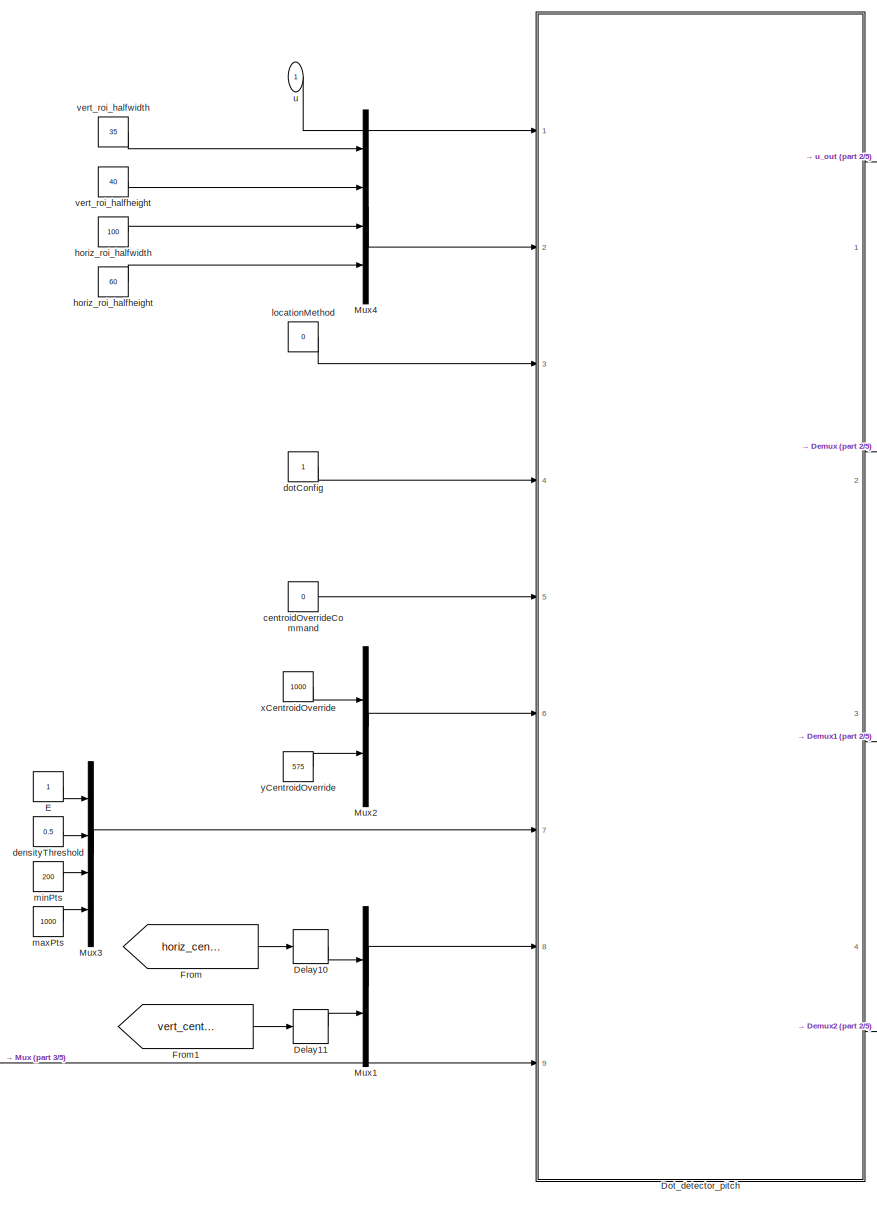
[diagram: cam3A - part 1/5, middle left region]
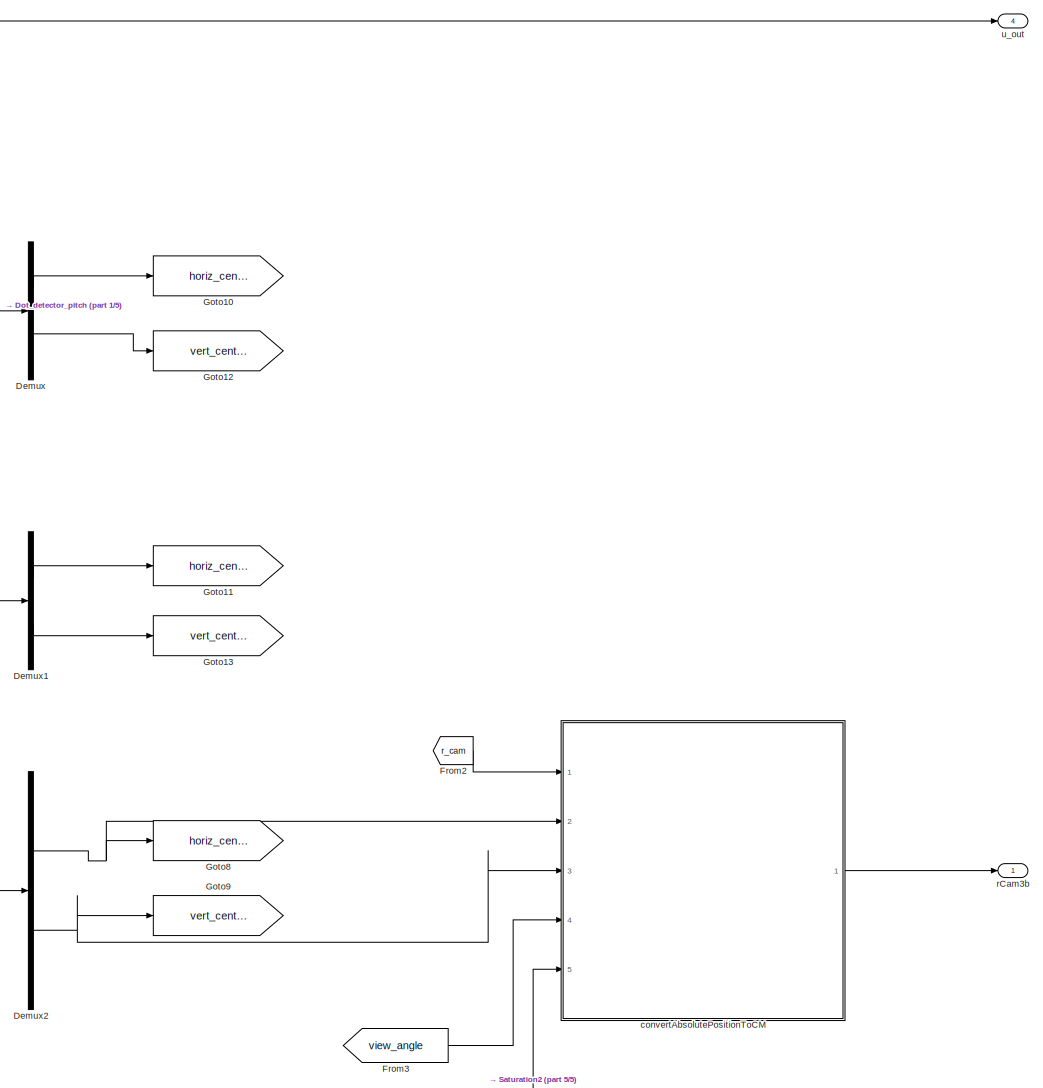
[diagram: cam3A - part 2/5, middle right region]
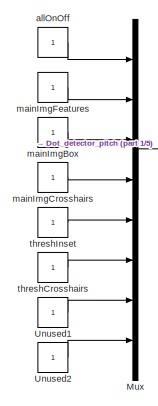
[diagram: cam3A - part 3/5, middle left region]
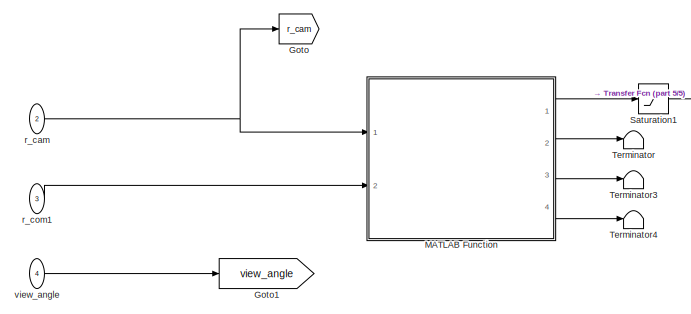
[diagram: cam3A - part 4/5, bottom left region]
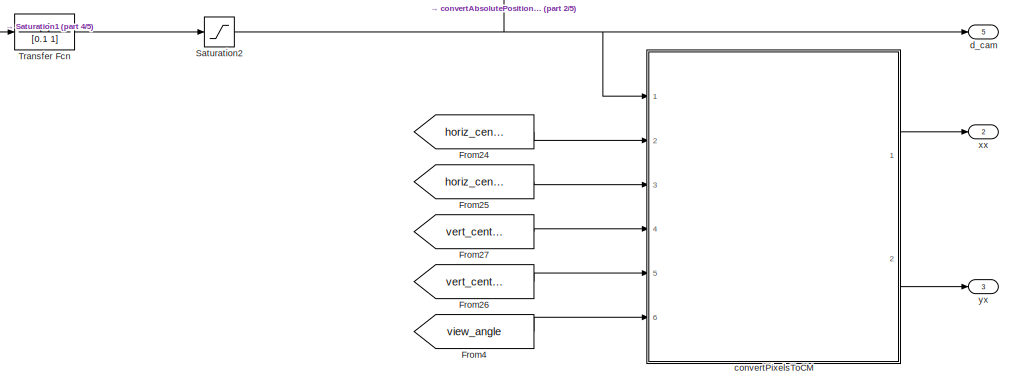
[diagram: cam3A - part 5/5, bottom right region]
BLOCK [SubSystem] cam3A
  Ports = [4, 5]
  RequestExecContextInheritance = off
BLOCK [Delay] cam3A/Delay10
  DelayLength = 1
  InitialCondition = 1655
  InputPortMap = u0
  Ports = [1, 1]
BLOCK [Delay] cam3A/Delay11
  DelayLength = 1
  InitialCondition = 800
  InputPortMap = u0
  Ports = [1, 1]
BLOCK [Demux] cam3A/Demux
  DisplayOption = bar
  Outputs = 2
  Ports = [1, 2]
BLOCK [Demux] cam3A/Demux1
  DisplayOption = bar
  Outputs = 2
  Ports = [1, 2]
BLOCK [Demux] cam3A/Demux2
  DisplayOption = bar
  Outputs = 2
  Ports = [1, 2]
BLOCK [SubSystem] cam3A/Dot_detector_pitch
  ErrorFcn = Stateflow.Translate.translate
  PermitHierarchicalResolution = ExplicitOnly
  Ports = [9, 4]
  RequestExecContextInheritance = off
  SFBlockType = MATLAB Function
  TreatAsAtomicUnit = on
BLOCK [Demux] cam3A/Dot_detector_pitch/ Demux 
  Outputs = 1
  Ports = [1, 1]
BLOCK [S-Function] cam3A/Dot_detector_pitch/ SFunction 
  EnableBusSupport = off
  FunctionName = sf_sfun
  PortCounts = [9 5]
  Ports = [9, 5]
  SFcnIsStateOwnerBlock = off
  SFunctionDeploymentMode = off
  Tag = Stateflow S-Function UNCCModel 7
BLOCK [Terminator] cam3A/Dot_detector_pitch/ Terminator 
BLOCK [Inport] cam3A/Dot_detector_pitch/centroidOverrideCommand
  IconDisplay = Port number
  Port = 5
BLOCK [Inport] cam3A/Dot_detector_pitch/clusteringParameters
  IconDisplay = Port number
  Port = 7
BLOCK [Inport] cam3A/Dot_detector_pitch/dotConfig
  IconDisplay = Port number
  Port = 4
BLOCK [Inport] cam3A/Dot_detector_pitch/locationMethod
  IconDisplay = Port number
  Port = 3
BLOCK [Outport] cam3A/Dot_detector_pitch/r1Img
  IconDisplay = Port number
  Port = 2
BLOCK [Outport] cam3A/Dot_detector_pitch/r2Img
  IconDisplay = Port number
  Port = 3
BLOCK [Inport] cam3A/Dot_detector_pitch/rCentroidAuto
  IconDisplay = Port number
  Port = 8
BLOCK [Outport] cam3A/Dot_detector_pitch/rCentroidImg
  IconDisplay = Port number
  Port = 4
BLOCK [Inport] cam3A/Dot_detector_pitch/rCentroidManualOverride
  IconDisplay = Port number
  Port = 6
BLOCK [Inport] cam3A/Dot_detector_pitch/roiDims
  IconDisplay = Port number
  Port = 2
BLOCK [Inport] cam3A/Dot_detector_pitch/u
  IconDisplay = Port number
BLOCK [Outport] cam3A/Dot_detector_pitch/uOut
  IconDisplay = Port number
BLOCK [Inport] cam3A/Dot_detector_pitch/viewOptions
  IconDisplay = Port number
  Port = 9
BLOCK [Constant] cam3A/E
BLOCK [From] cam3A/From
  GotoTag = horiz_centroid_r
BLOCK [From] cam3A/From1
  GotoTag = vert_centroid_r
BLOCK [From] cam3A/From2
  GotoTag = r_cam
BLOCK [From] cam3A/From24
  GotoTag = horiz_centroid_top_r
BLOCK [From] cam3A/From25
  GotoTag = horiz_centroid_bottom_r
BLOCK [From] cam3A/From26
  GotoTag = vert_centroid_bottom_r
BLOCK [From] cam3A/From27
  GotoTag = vert_centroid_top_r
BLOCK [From] cam3A/From3
  GotoTag = view_angle
BLOCK [From] cam3A/From4
  GotoTag = view_angle
BLOCK [Goto] cam3A/Goto
  GotoTag = r_cam
BLOCK [Goto] cam3A/Goto1
  GotoTag = view_angle
BLOCK [Goto] cam3A/Goto10
  GotoTag = horiz_centroid_top_r
BLOCK [Goto] cam3A/Goto11
  GotoTag = horiz_centroid_bottom_r
BLOCK [Goto] cam3A/Goto12
  GotoTag = vert_centroid_top_r
BLOCK [Goto] cam3A/Goto13
  GotoTag = vert_centroid_bottom_r
BLOCK [Goto] cam3A/Goto8
  GotoTag = horiz_centroid_r
BLOCK [Goto] cam3A/Goto9
  GotoTag = vert_centroid_r
BLOCK [SubSystem] cam3A/MATLAB Function
  ErrorFcn = Stateflow.Translate.translate
  PermitHierarchicalResolution = ExplicitOnly
  Ports = [2, 4]
  RequestExecContextInheritance = off
  SFBlockType = MATLAB Function
  TreatAsAtomicUnit = on
BLOCK [Demux] cam3A/MATLAB Function/ Demux 
  Outputs = 1
  Ports = [1, 1]
BLOCK [S-Function] cam3A/MATLAB Function/ SFunction 
  EnableBusSupport = off
  FunctionName = sf_sfun
  PortCounts = [2 5]
  Ports = [2, 5]
  SFcnIsStateOwnerBlock = off
  SFunctionDeploymentMode = off
  Tag = Stateflow S-Function UNCCModel 8
BLOCK [Terminator] cam3A/MATLAB Function/ Terminator 
BLOCK [Outport] cam3A/MATLAB Function/d_cam_com
  IconDisplay = Port number
BLOCK [Inport] cam3A/MATLAB Function/r_cam
  IconDisplay = Port number
BLOCK [Inport] cam3A/MATLAB Function/r_com
  IconDisplay = Port number
  Port = 2
BLOCK [Outport] cam3A/MATLAB Function/x_dist
  IconDisplay = Port number
  Port = 2
BLOCK [Outport] cam3A/MATLAB Function/y_dist
  IconDisplay = Port number
  Port = 3
BLOCK [Outport] cam3A/MATLAB Function/z_dist
  IconDisplay = Port number
  Port = 4
BLOCK [Mux] cam3A/Mux
  DisplayOption = bar
  Inputs = 8
  Ports = [8, 1]
BLOCK [Mux] cam3A/Mux1
  DisplayOption = bar
  Inputs = 2
  Ports = [2, 1]
BLOCK [Mux] cam3A/Mux2
  DisplayOption = bar
  Inputs = 2
  Ports = [2, 1]
BLOCK [Mux] cam3A/Mux3
  DisplayOption = bar
  Ports = [4, 1]
BLOCK [Mux] cam3A/Mux4
  DisplayOption = bar
  Ports = [4, 1]
BLOCK [Saturate] cam3A/Saturation1
  InputPortMap = u0
  LowerLimit = 1
  Ports = [1, 1]
  UpperLimit = 200
BLOCK [Saturate] cam3A/Saturation2
  InputPortMap = u0
  LowerLimit = 1
  Ports = [1, 1]
  UpperLimit = 200
BLOCK [Terminator] cam3A/Terminator
BLOCK [Terminator] cam3A/Terminator3
BLOCK [Terminator] cam3A/Terminator4
BLOCK [TransferFcn] cam3A/Transfer Fcn
  Denominator = [0.1 1]
BLOCK [Constant] cam3A/Unused1
BLOCK [Constant] cam3A/Unused2
BLOCK [Constant] cam3A/allOnOff
BLOCK [Constant] cam3A/centroidOverrideCommand
  Value = 0
BLOCK [SubSystem] cam3A/convertAbsolutePositionToCM
  ErrorFcn = Stateflow.Translate.translate
  PermitHierarchicalResolution = ExplicitOnly
  Ports = [5, 1]
  RequestExecContextInheritance = off
  SFBlockType = MATLAB Function
  TreatAsAtomicUnit = on
BLOCK [Demux] cam3A/convertAbsolutePositionToCM/ Demux 
  Outputs = 1
  Ports = [1, 1]
BLOCK [S-Function] cam3A/convertAbsolutePositionToCM/ SFunction 
  EnableBusSupport = off
  FunctionName = sf_sfun
  PortCounts = [5 2]
  Ports = [5, 2]
  SFcnIsStateOwnerBlock = off
  SFunctionDeploymentMode = off
  Tag = Stateflow S-Function UNCCModel 16
BLOCK [Terminator] cam3A/convertAbsolutePositionToCM/ Terminator 
BLOCK [Inport] cam3A/convertAbsolutePositionToCM/d
  IconDisplay = Port number
  Port = 5
BLOCK [Outport] cam3A/convertAbsolutePositionToCM/r
  IconDisplay = Port number
BLOCK [Inport] cam3A/convertAbsolutePositionToCM/rCam
  IconDisplay = Port number
BLOCK [Inport] cam3A/convertAbsolutePositionToCM/viewAngle
  IconDisplay = Port number
  Port = 4
BLOCK [Inport] cam3A/convertAbsolutePositionToCM/xCam
  IconDisplay = Port number
  Port = 2
BLOCK [Inport] cam3A/convertAbsolutePositionToCM/yCam
  IconDisplay = Port number
  Port = 3
BLOCK [SubSystem] cam3A/convertPixelsToCM
  ErrorFcn = Stateflow.Translate.translate
  PermitHierarchicalResolution = ExplicitOnly
  Ports = [6, 2]
  RequestExecContextInheritance = off
  SFBlockType = MATLAB Function
  TreatAsAtomicUnit = on
BLOCK [Demux] cam3A/convertPixelsToCM/ Demux 
  Outputs = 1
  Ports = [1, 1]
BLOCK [S-Function] cam3A/convertPixelsToCM/ SFunction 
  EnableBusSupport = off
  FunctionName = sf_sfun
  PortCounts = [6 3]
  Ports = [6, 3]
  SFcnIsStateOwnerBlock = off
  SFunctionDeploymentMode = off
  Tag = Stateflow S-Function UNCCModel 12
BLOCK [Terminator] cam3A/convertPixelsToCM/ Terminator 
BLOCK [Inport] cam3A/convertPixelsToCM/d
  IconDisplay = Port number
BLOCK [Inport] cam3A/convertPixelsToCM/viewAngle
  IconDisplay = Port number
  Port = 6
BLOCK [Inport] cam3A/convertPixelsToCM/xBottom
  IconDisplay = Port number
  Port = 3
BLOCK [Inport] cam3A/convertPixelsToCM/xTop
  IconDisplay = Port number
  Port = 2
BLOCK [Outport] cam3A/convertPixelsToCM/xx
  IconDisplay = Port number
BLOCK [Inport] cam3A/convertPixelsToCM/yBottom
  IconDisplay = Port number
  Port = 5
BLOCK [Inport] cam3A/convertPixelsToCM/yTop
  IconDisplay = Port number
  Port = 4
BLOCK [Outport] cam3A/convertPixelsToCM/yx
  IconDisplay = Port number
  Port = 2
BLOCK [Outport] cam3A/d_cam
  IconDisplay = Port number
  Port = 5
BLOCK [Constant] cam3A/densityThreshold
  Value = 0.5
BLOCK [Constant] cam3A/dotConfig
BLOCK [Constant] cam3A/horiz_roi_halfheight
  Value = 60
BLOCK [Constant] cam3A/horiz_roi_halfwidth
  Value = 100
BLOCK [Constant] cam3A/locationMethod
  Value = 0
BLOCK [Constant] cam3A/mainImgBox
BLOCK [Constant] cam3A/mainImgCrosshairs
BLOCK [Constant] cam3A/mainImgFeatures
BLOCK [Constant] cam3A/maxPts
  Value = 1000
BLOCK [Constant] cam3A/minPts
  Value = 200
BLOCK [Outport] cam3A/rCam3b
  IconDisplay = Port number
BLOCK [Inport] cam3A/r_cam
  IconDisplay = Port number
  Port = 2
BLOCK [Inport] cam3A/r_com1
  IconDisplay = Port number
  Port = 3
BLOCK [Constant] cam3A/threshCrosshairs
BLOCK [Constant] cam3A/threshInset
BLOCK [Inport] cam3A/u
  IconDisplay = Port number
BLOCK [Outport] cam3A/u_out 
  IconDisplay = Port number
  Port = 4
BLOCK [Constant] cam3A/vert_roi_halfheight
  Value = 40
BLOCK [Constant] cam3A/vert_roi_halfwidth
  Value = 35
BLOCK [Inport] cam3A/view_angle
  IconDisplay = Port number
  Port = 4
BLOCK [Constant] cam3A/xCentroidOverride
  Value = 1000
BLOCK [Outport] cam3A/xx
  IconDisplay = Port number
  Port = 2
BLOCK [Constant] cam3A/yCentroidOverride
  Value = 575
BLOCK [Outport] cam3A/yx
  IconDisplay = Port number
  Port = 3
BLOCK [SubSystem] cam3B
  Ports = [4, 5]
  RequestExecContextInheritance = off
BLOCK [Delay] cam3B/Delay12
  DelayLength = 1
  InitialCondition = 800
  InputPortMap = u0
  Ports = [1, 1]
BLOCK [Delay] cam3B/Delay13
  DelayLength = 1
  InitialCondition = 1460
  InputPortMap = u0
  Ports = [1, 1]
BLOCK [Demux] cam3B/Demux
  DisplayOption = bar
  Outputs = 2
  Ports = [1, 2]
BLOCK [Demux] cam3B/Demux1
  DisplayOption = bar
  Outputs = 2
  Ports = [1, 2]
BLOCK [Demux] cam3B/Demux2
  DisplayOption = bar
  Outputs = 2
  Ports = [1, 2]
BLOCK [SubSystem] cam3B/Dot_detector_pitch
  ErrorFcn = Stateflow.Translate.translate
  PermitHierarchicalResolution = ExplicitOnly
  Ports = [9, 4]
  RequestExecContextInheritance = off
  SFBlockType = MATLAB Function
  TreatAsAtomicUnit = on
BLOCK [Demux] cam3B/Dot_detector_pitch/ Demux 
  Outputs = 1
  Ports = [1, 1]
BLOCK [S-Function] cam3B/Dot_detector_pitch/ SFunction 
  EnableBusSupport = off
  FunctionName = sf_sfun
  PortCounts = [9 5]
  Ports = [9, 5]
  SFcnIsStateOwnerBlock = off
  SFunctionDeploymentMode = off
  Tag = Stateflow S-Function UNCCModel 1
BLOCK [Terminator] cam3B/Dot_detector_pitch/ Terminator 
BLOCK [Inport] cam3B/Dot_detector_pitch/centroidOverrideCommand
  IconDisplay = Port number
  Port = 5
BLOCK [Inport] cam3B/Dot_detector_pitch/clusteringParameters
  IconDisplay = Port number
  Port = 7
BLOCK [Inport] cam3B/Dot_detector_pitch/dotConfig
  IconDisplay = Port number
  Port = 4
BLOCK [Inport] cam3B/Dot_detector_pitch/locationMethod
  IconDisplay = Port number
  Port = 3
BLOCK [Outport] cam3B/Dot_detector_pitch/r1Img
  IconDisplay = Port number
  Port = 2
BLOCK [Outport] cam3B/Dot_detector_pitch/r2Img
  IconDisplay = Port number
  Port = 3
BLOCK [Inport] cam3B/Dot_detector_pitch/rCentroidAuto
  IconDisplay = Port number
  Port = 8
BLOCK [Outport] cam3B/Dot_detector_pitch/rCentroidImg
  IconDisplay = Port number
  Port = 4
BLOCK [Inport] cam3B/Dot_detector_pitch/rCentroidManualOverride
  IconDisplay = Port number
  Port = 6
BLOCK [Inport] cam3B/Dot_detector_pitch/roiDims
  IconDisplay = Port number
  Port = 2
BLOCK [Inport] cam3B/Dot_detector_pitch/u
  IconDisplay = Port number
BLOCK [Outport] cam3B/Dot_detector_pitch/uOut
  IconDisplay = Port number
BLOCK [Inport] cam3B/Dot_detector_pitch/viewOptions
  IconDisplay = Port number
  Port = 9
BLOCK [Constant] cam3B/E
BLOCK [From] cam3B/From
  GotoTag = r_cam
BLOCK [From] cam3B/From1
  GotoTag = view_angle
BLOCK [From] cam3B/From2
  GotoTag = view_angle
BLOCK [From] cam3B/From24
  GotoTag = horiz_centroid_right_y
BLOCK [From] cam3B/From25
  GotoTag = horiz_centroid_left_y
BLOCK [From] cam3B/From26
  GotoTag = vert_centroid_left_y
BLOCK [From] cam3B/From27
  GotoTag = vert_centroid_right_y
BLOCK [From] cam3B/From28
  GotoTag = horiz_centroid_y
BLOCK [From] cam3B/From29
  GotoTag = vert_centroid_y
BLOCK [Goto] cam3B/Goto
  GotoTag = r_cam
BLOCK [Goto] cam3B/Goto1
  GotoTag = view_angle
BLOCK [Goto] cam3B/Goto15
  GotoTag = horiz_centroid_y
BLOCK [Goto] cam3B/Goto16
  GotoTag = vert_centroid_y
BLOCK [Goto] cam3B/Goto17
  GotoTag = horiz_centroid_left_y
BLOCK [Goto] cam3B/Goto18
  GotoTag = horiz_centroid_right_y
BLOCK [Goto] cam3B/Goto19
  GotoTag = vert_centroid_left_y
BLOCK [Goto] cam3B/Goto20
  GotoTag = vert_centroid_right_y
BLOCK [SubSystem] cam3B/MATLAB Function
  ErrorFcn = Stateflow.Translate.translate
  PermitHierarchicalResolution = ExplicitOnly
  Ports = [2, 4]
  RequestExecContextInheritance = off
  SFBlockType = MATLAB Function
  TreatAsAtomicUnit = on
BLOCK [Demux] cam3B/MATLAB Function/ Demux 
  Outputs = 1
  Ports = [1, 1]
BLOCK [S-Function] cam3B/MATLAB Function/ SFunction 
  EnableBusSupport = off
  FunctionName = sf_sfun
  PortCounts = [2 5]
  Ports = [2, 5]
  SFcnIsStateOwnerBlock = off
  SFunctionDeploymentMode = off
  Tag = Stateflow S-Function UNCCModel 10
BLOCK [Terminator] cam3B/MATLAB Function/ Terminator 
BLOCK [Outport] cam3B/MATLAB Function/d_cam_com
  IconDisplay = Port number
BLOCK [Inport] cam3B/MATLAB Function/r_cam
  IconDisplay = Port number
BLOCK [Inport] cam3B/MATLAB Function/r_com
  IconDisplay = Port number
  Port = 2
BLOCK [Outport] cam3B/MATLAB Function/x_dist
  IconDisplay = Port number
  Port = 2
BLOCK [Outport] cam3B/MATLAB Function/y_dist
  IconDisplay = Port number
  Port = 3
BLOCK [Outport] cam3B/MATLAB Function/z_dist
  IconDisplay = Port number
  Port = 4
BLOCK [Mux] cam3B/Mux
  DisplayOption = bar
  Inputs = 8
  Ports = [8, 1]
BLOCK [Mux] cam3B/Mux1
  DisplayOption = bar
  Inputs = 2
  Ports = [2, 1]
BLOCK [Mux] cam3B/Mux2
  DisplayOption = bar
  Inputs = 2
  Ports = [2, 1]
BLOCK [Mux] cam3B/Mux3
  DisplayOption = bar
  Ports = [4, 1]
BLOCK [Mux] cam3B/Mux4
  DisplayOption = bar
  Ports = [4, 1]
BLOCK [Saturate] cam3B/Saturation1
  InputPortMap = u0
  LowerLimit = 1
  Ports = [1, 1]
  UpperLimit = 200
BLOCK [Saturate] cam3B/Saturation2
  InputPortMap = u0
  LowerLimit = 1
  Ports = [1, 1]
  UpperLimit = 200
BLOCK [Terminator] cam3B/Terminator
BLOCK [Terminator] cam3B/Terminator3
BLOCK [Terminator] cam3B/Terminator4
BLOCK [TransferFcn] cam3B/Transfer Fcn
  Denominator = [0.1 1]
BLOCK [Constant] cam3B/Unused1
BLOCK [Constant] cam3B/Unused2
BLOCK [Constant] cam3B/allOnOff
BLOCK [Constant] cam3B/centroidOverrideCommand
  Value = 0
BLOCK [SubSystem] cam3B/convertAbsolutePositionToCM
  ErrorFcn = Stateflow.Translate.translate
  PermitHierarchicalResolution = ExplicitOnly
  Ports = [5, 1]
  RequestExecContextInheritance = off
  SFBlockType = MATLAB Function
  TreatAsAtomicUnit = on
BLOCK [Demux] cam3B/convertAbsolutePositionToCM/ Demux 
  Outputs = 1
  Ports = [1, 1]
BLOCK [S-Function] cam3B/convertAbsolutePositionToCM/ SFunction 
  EnableBusSupport = off
  FunctionName = sf_sfun
  PortCounts = [5 2]
  Ports = [5, 2]
  SFcnIsStateOwnerBlock = off
  SFunctionDeploymentMode = off
  Tag = Stateflow S-Function UNCCModel 18
BLOCK [Terminator] cam3B/convertAbsolutePositionToCM/ Terminator 
BLOCK [Inport] cam3B/convertAbsolutePositionToCM/d
  IconDisplay = Port number
  Port = 5
BLOCK [Outport] cam3B/convertAbsolutePositionToCM/r
  IconDisplay = Port number
BLOCK [Inport] cam3B/convertAbsolutePositionToCM/rCam
  IconDisplay = Port number
BLOCK [Inport] cam3B/convertAbsolutePositionToCM/viewAngle
  IconDisplay = Port number
  Port = 4
BLOCK [Inport] cam3B/convertAbsolutePositionToCM/xCam
  IconDisplay = Port number
  Port = 2
BLOCK [Inport] cam3B/convertAbsolutePositionToCM/yCam
  IconDisplay = Port number
  Port = 3
BLOCK [SubSystem] cam3B/convertPixelsToCM
  ErrorFcn = Stateflow.Translate.translate
  PermitHierarchicalResolution = ExplicitOnly
  Ports = [6, 2]
  RequestExecContextInheritance = off
  SFBlockType = MATLAB Function
  TreatAsAtomicUnit = on
BLOCK [Demux] cam3B/convertPixelsToCM/ Demux 
  Outputs = 1
  Ports = [1, 1]
BLOCK [S-Function] cam3B/convertPixelsToCM/ SFunction 
  EnableBusSupport = off
  FunctionName = sf_sfun
  PortCounts = [6 3]
  Ports = [6, 3]
  SFcnIsStateOwnerBlock = off
  SFunctionDeploymentMode = off
  Tag = Stateflow S-Function UNCCModel 14
BLOCK [Terminator] cam3B/convertPixelsToCM/ Terminator 
BLOCK [Inport] cam3B/convertPixelsToCM/d
  IconDisplay = Port number
BLOCK [Inport] cam3B/convertPixelsToCM/viewAngle
  IconDisplay = Port number
  Port = 6
BLOCK [Inport] cam3B/convertPixelsToCM/xLeft
  IconDisplay = Port number
  Port = 2
BLOCK [Inport] cam3B/convertPixelsToCM/xRight
  IconDisplay = Port number
  Port = 3
BLOCK [Outport] cam3B/convertPixelsToCM/xy
  IconDisplay = Port number
BLOCK [Inport] cam3B/convertPixelsToCM/yLeft
  IconDisplay = Port number
  Port = 4
BLOCK [Inport] cam3B/convertPixelsToCM/yRight
  IconDisplay = Port number
  Port = 5
BLOCK [Outport] cam3B/convertPixelsToCM/yy
  IconDisplay = Port number
  Port = 2
BLOCK [Outport] cam3B/d_cam
  IconDisplay = Port number
  Port = 5
BLOCK [Constant] cam3B/densityThreshold
  Value = 0.5
BLOCK [Constant] cam3B/dotConfig
  Value = 0
BLOCK [Constant] cam3B/horiz_roi_halfheight
  Value = 30
BLOCK [Constant] cam3B/horiz_roi_halfwidth
  Value = 55
BLOCK [Constant] cam3B/locationMethod
  Value = 0
BLOCK [Constant] cam3B/mainImgBox
BLOCK [Constant] cam3B/mainImgCrosshairs
BLOCK [Constant] cam3B/mainImgFeatures
BLOCK [Constant] cam3B/maxPts
  Value = 1000
BLOCK [Constant] cam3B/minPts
  Value = 200
BLOCK [Outport] cam3B/rCam3a
  IconDisplay = Port number
BLOCK [Inport] cam3B/r_cam
  IconDisplay = Port number
  Port = 2
BLOCK [Inport] cam3B/r_com 
  IconDisplay = Port number
  Port = 3
BLOCK [Constant] cam3B/threshCrosshairs
BLOCK [Constant] cam3B/threshInset
BLOCK [Inport] cam3B/u 
  IconDisplay = Port number
BLOCK [Outport] cam3B/u_out
  IconDisplay = Port number
  Port = 4
BLOCK [Constant] cam3B/vert_roi_halfheight
  Value = 40
BLOCK [Constant] cam3B/vert_roi_halfwidth
  Value = 45
BLOCK [Inport] cam3B/view_angle
  IconDisplay = Port number
  Port = 4
BLOCK [Constant] cam3B/xCentroidOverride
  Value = 1000
BLOCK [Outport] cam3B/xy
  IconDisplay = Port number
  Port = 2
BLOCK [Constant] cam3B/yCentroidOverride
  Value = 500
BLOCK [Outport] cam3B/yy
  IconDisplay = Port number
  Port = 3
BLOCK [Constant] centerMotorSpeed
  Value = 0
BLOCK [Outport] centerVoltage
  IconDisplay = Port number
  Port = 53
BLOCK [Constant] controlMode
  Value = 0
BLOCK [Outport] controlModeSignal
  IconDisplay = Port number
  Port = 62
BLOCK [Gain] convert_to_rad
  Gain = pi/180
  OutDataTypeStr = Inherit: Inherit via internal rule
  ParamDataTypeStr = Inherit: Inherit via internal rule
  SaturateOnIntegerOverflow = off
BLOCK [Gain] convert_to_rad1
  Gain = pi/180
  OutDataTypeStr = Inherit: Inherit via internal rule
  ParamDataTypeStr = Inherit: Inherit via internal rule
  SaturateOnIntegerOverflow = off
BLOCK [Gain] convert_to_rad3
  Gain = pi/180
  OutDataTypeStr = Inherit: Inherit via internal rule
  ParamDataTypeStr = Inherit: Inherit via internal rule
  SaturateOnIntegerOverflow = off
BLOCK [Gain] convert_to_rad_2
  Gain = pi/180
  OutDataTypeStr = Inherit: Inherit via internal rule
  ParamDataTypeStr = Inherit: Inherit via internal rule
  SaturateOnIntegerOverflow = off
BLOCK [Outport] dCam1
  IconDisplay = Port number
  Port = 48
BLOCK [Outport] dCam2
  IconDisplay = Port number
  Port = 49
BLOCK [Outport] dCam3a
  IconDisplay = Port number
  Port = 52
BLOCK [Outport] dCam3b
  IconDisplay = Port number
  Port = 32
BLOCK [Reference] errorFlag  REF=slrtlib/Displays and
Logging/Scope 
  Ports = [1]
  Priority = 2
  SourceBlock = slrtlib/Displays and\nLogging/Scope
  SourceProductBaseCode = XP
  SourceProductName = Simulink Real-Time
  SourceType = xpcscopeblock
  Tag = Motor Volts
BLOCK [Constant] errorSignal
  Value = 0
BLOCK [SubSystem] findEulerAngles
  ErrorFcn = Stateflow.Translate.translate
  PermitHierarchicalResolution = ExplicitOnly
  Ports = [3, 4]
  RequestExecContextInheritance = off
  SFBlockType = MATLAB Function
  TreatAsAtomicUnit = on
BLOCK [Demux] findEulerAngles/ Demux 
  Outputs = 1
  Ports = [1, 1]
BLOCK [S-Function] findEulerAngles/ SFunction 
  EnableBusSupport = off
  FunctionName = sf_sfun
  PortCounts = [3 5]
  Ports = [3, 5]
  SFcnIsStateOwnerBlock = off
  SFunctionDeploymentMode = off
  Tag = Stateflow S-Function UNCCModel 24
BLOCK [Terminator] findEulerAngles/ Terminator 
BLOCK [Outport] findEulerAngles/R
  IconDisplay = Port number
  Port = 4
BLOCK [Outport] findEulerAngles/pitch
  IconDisplay = Port number
  Port = 2
BLOCK [Outport] findEulerAngles/roll
  IconDisplay = Port number
BLOCK [Inport] findEulerAngles/rx
  IconDisplay = Port number
BLOCK [Inport] findEulerAngles/ry
  IconDisplay = Port number
  Port = 2
BLOCK [Inport] findEulerAngles/rz
  IconDisplay = Port number
  Port = 3
BLOCK [Outport] findEulerAngles/yaw
  IconDisplay = Port number
  Port = 3
BLOCK [SubSystem] findPositions
  ErrorFcn = Stateflow.Translate.translate
  PermitHierarchicalResolution = ExplicitOnly
  Ports = [7, 5]
  RequestExecContextInheritance = off
  SFBlockType = MATLAB Function
  TreatAsAtomicUnit = on
BLOCK [Demux] findPositions/ Demux 
  Outputs = 1
  Ports = [1, 1]
BLOCK [S-Function] findPositions/ SFunction 
  EnableBusSupport = off
  FunctionName = sf_sfun
  PortCounts = [7 6]
  Ports = [7, 6]
  SFcnIsStateOwnerBlock = off
  SFunctionDeploymentMode = off
  Tag = Stateflow S-Function UNCCModel 4
BLOCK [Terminator] findPositions/ Terminator 
BLOCK [Inport] findPositions/R
  IconDisplay = Port number
  Port = 4
BLOCK [Inport] findPositions/rBottomABF
  IconDisplay = Port number
  Port = 6
BLOCK [Inport] findPositions/rBottomAGF
  IconDisplay = Port number
  Port = 2
BLOCK [Inport] findPositions/rBottomBBF
  IconDisplay = Port number
  Port = 7
BLOCK [Inport] findPositions/rBottomBGF
  IconDisplay = Port number
  Port = 3
BLOCK [Inport] findPositions/rSideBF
  IconDisplay = Port number
  Port = 5
BLOCK [Inport] findPositions/rSideGF
  IconDisplay = Port number
BLOCK [Outport] findPositions/x1
  IconDisplay = Port number
BLOCK [Outport] findPositions/x2
  IconDisplay = Port number
  Port = 2
BLOCK [Outport] findPositions/y1
  IconDisplay = Port number
  Port = 3
BLOCK [Outport] findPositions/y2
  IconDisplay = Port number
  Port = 4
BLOCK [Outport] findPositions/z
  IconDisplay = Port number
  Port = 5
BLOCK [SubSystem] findPositions1
  ErrorFcn = Stateflow.Translate.translate
  PermitHierarchicalResolution = ExplicitOnly
  Ports = [5, 3]
  RequestExecContextInheritance = off
  SFBlockType = MATLAB Function
  TreatAsAtomicUnit = on
BLOCK [Demux] findPositions1/ Demux 
  Outputs = 1
  Ports = [1, 1]
BLOCK [S-Function] findPositions1/ SFunction 
  EnableBusSupport = off
  FunctionName = sf_sfun
  PortCounts = [5 4]
  Ports = [5, 4]
  SFcnIsStateOwnerBlock = off
  SFunctionDeploymentMode = off
  Tag = Stateflow S-Function UNCCModel 2
BLOCK [Terminator] findPositions1/ Terminator 
BLOCK [Inport] findPositions1/R
  IconDisplay = Port number
BLOCK [Inport] findPositions1/rBottomABF
  IconDisplay = Port number
  Port = 4
BLOCK [Outport] findPositions1/rBottomAGF
  IconDisplay = Port number
  Port = 2
BLOCK [Inport] findPositions1/rBottomBBF
  IconDisplay = Port number
  Port = 5
BLOCK [Outport] findPositions1/rBottomBGF
  IconDisplay = Port number
  Port = 3
BLOCK [Inport] findPositions1/rCOM
  IconDisplay = Port number
  Port = 2
BLOCK [Inport] findPositions1/rSideBF
  IconDisplay = Port number
  Port = 3
BLOCK [Outport] findPositions1/rSideGF
  IconDisplay = Port number
BLOCK [SubSystem] findUnitVectors
  ErrorFcn = Stateflow.Translate.translate
  PermitHierarchicalResolution = ExplicitOnly
  Ports = [12, 4]
  RequestExecContextInheritance = off
  SFBlockType = MATLAB Function
  TreatAsAtomicUnit = on
BLOCK [Demux] findUnitVectors/ Demux 
  Outputs = 1
  Ports = [1, 1]
BLOCK [S-Function] findUnitVectors/ SFunction 
  EnableBusSupport = off
  FunctionName = sf_sfun
  PortCounts = [12 5]
  Ports = [12, 5]
  SFcnIsStateOwnerBlock = off
  SFunctionDeploymentMode = off
  Tag = Stateflow S-Function UNCCModel 23
BLOCK [Terminator] findUnitVectors/ Terminator 
BLOCK [Inport] findUnitVectors/bottomASep
  IconDisplay = Port number
  Port = 10
BLOCK [Inport] findUnitVectors/bottomBSep
  IconDisplay = Port number
  Port = 11
BLOCK [Inport] findUnitVectors/cameraAngle
  IconDisplay = Port number
  Port = 12
BLOCK [Outport] findUnitVectors/error
  IconDisplay = Port number
  Port = 4
BLOCK [Outport] findUnitVectors/rx
  IconDisplay = Port number
BLOCK [Outport] findUnitVectors/ry
  IconDisplay = Port number
  Port = 2
BLOCK [Outport] findUnitVectors/rz
  IconDisplay = Port number
  Port = 3
BLOCK [Inport] findUnitVectors/sideSep
  IconDisplay = Port number
  Port = 9
BLOCK [Inport] findUnitVectors/xxCam1
  IconDisplay = Port number
BLOCK [Inport] findUnitVectors/xxCam3a
  IconDisplay = Port number
  Port = 2
BLOCK [Inport] findUnitVectors/xyCam3b
  IconDisplay = Port number
  Port = 5
BLOCK [Inport] findUnitVectors/yxCam3a
  IconDisplay = Port number
  Port = 3
BLOCK [Inport] findUnitVectors/yyCam2
  IconDisplay = Port number
  Port = 6
BLOCK [Inport] findUnitVectors/yyCam3b
  IconDisplay = Port number
  Port = 7
BLOCK [Inport] findUnitVectors/zxCam1
  IconDisplay = Port number
  Port = 4
BLOCK [Inport] findUnitVectors/zyCam2
  IconDisplay = Port number
  Port = 8
BLOCK [Constant] flowSpeedCMpS
  Value = 16.3
BLOCK [Outport] flowSpeedCentimetersPerSecond
  IconDisplay = Port number
  Port = 20
BLOCK [Constant] flowSpeedHertz
  Value = 18.8
BLOCK [Outport] flowSpeedHz
  IconDisplay = Port number
  Port = 63
BLOCK [Constant] flowSpeedMeterReading
  Value = 20.39
BLOCK [Outport] flowSpeedMeterReadingCMpS
  IconDisplay = Port number
  Port = 64
BLOCK [Constant] flowSpeedVoltageCmd
  Value = 0
BLOCK [From] from r_cam1
  GotoTag = r_cam3
BLOCK [From] from r_cam2
  GotoTag = r_cam2
BLOCK [From] from r_cam3
  GotoTag = r_cam3
BLOCK [From] fromRoll
  GotoTag = phi
BLOCK [From] fromRoll1
  GotoTag = theta
BLOCK [From] fromRoll10
  GotoTag = pitchCommand
BLOCK [From] fromRoll11
  GotoTag = rollCommand
BLOCK [From] fromRoll12
  GotoTag = centerMotorVoltage
BLOCK [From] fromRoll13
  GotoTag = portMotorVoltage
BLOCK [From] fromRoll14
  GotoTag = starboardMotorVoltage
BLOCK [From] fromRoll2
  GotoTag = psi
BLOCK [From] fromRoll3
  GotoTag = x
BLOCK [From] fromRoll4
  GotoTag = y
BLOCK [From] fromRoll5
  GotoTag = z
BLOCK [From] fromRoll6
  GotoTag = altitudeCommand
BLOCK [From] fromRoll7
  GotoTag = pitchCommand
BLOCK [From] fromRoll8
  GotoTag = rollCommand
BLOCK [From] fromRoll9
  GotoTag = altitudeCommand
BLOCK [From] image1
  GotoTag = cam1
BLOCK [From] image12
  GotoTag = cam4
BLOCK [From] image2
  GotoTag = cam2
BLOCK [From] image3
  GotoTag = cam3
BLOCK [Constant] imageSource
  Value = 2
BLOCK [Goto] img1
  GotoTag = cam1
BLOCK [Goto] img2
  GotoTag = cam2
BLOCK [Goto] img3
  GotoTag = cam3
BLOCK [Goto] img4
  GotoTag = cam4
BLOCK [Gain] kdAltitude
  Gain = 0
  OutDataTypeStr = Inherit: Inherit via internal rule
  ParamDataTypeStr = Inherit: Inherit via internal rule
  SaturateOnIntegerOverflow = off
BLOCK [Gain] kdPitch
  Gain = 0.75
  OutDataTypeStr = Inherit: Inherit via internal rule
  ParamDataTypeStr = Inherit: Inherit via internal rule
  SaturateOnIntegerOverflow = off
BLOCK [Gain] kdRoll
  Gain = 2.250
  OutDataTypeStr = Inherit: Inherit via internal rule
  ParamDataTypeStr = Inherit: Inherit via internal rule
  SaturateOnIntegerOverflow = off
BLOCK [Gain] kpAltitude
  Gain = 0.115
  OutDataTypeStr = Inherit: Inherit via internal rule
  ParamDataTypeStr = Inherit: Inherit via internal rule
  SaturateOnIntegerOverflow = off
BLOCK [Gain] kpPitch
  Gain = 4.333
  OutDataTypeStr = Inherit: Inherit via internal rule
  ParamDataTypeStr = Inherit: Inherit via internal rule
  SaturateOnIntegerOverflow = off
BLOCK [Gain] kpRoll
  Gain = 8.666
  OutDataTypeStr = Inherit: Inherit via internal rule
  ParamDataTypeStr = Inherit: Inherit via internal rule
  SaturateOnIntegerOverflow = off
BLOCK [Outport] motorVoltageSat
  IconDisplay = Port number
  Port = 65
BLOCK [Constant] motorVoltageSaturation
  Value = 2.56
BLOCK [Constant] onOff
BLOCK [Constant] onOff1
BLOCK [Constant] onOff2
BLOCK [Outport] orientationError
  IconDisplay = Port number
  Port = 19
BLOCK [Constant] phiAmplitude
  Value = 15
BLOCK [Constant] phiControl
BLOCK [Constant] phiDes
  Value = 0
BLOCK [Constant] phiFrequency
  Value = 1/6.875
BLOCK [From] phi_meas
  GotoTag = phi
BLOCK [Outport] pitch
  IconDisplay = Port number
  Port = 2
BLOCK [Outport] pitchControllerCommand
  IconDisplay = Port number
  Port = 8
BLOCK [Outport] pitchControllerOnOff
  IconDisplay = Port number
  Port = 57
BLOCK [Constant] pitchDBLowerLimit
  Value = -2
BLOCK [Constant] pitchDBUpperLimit
  Value = 3
BLOCK [SubSystem] pitchDeadband
  ErrorFcn = Stateflow.Translate.translate
  PermitHierarchicalResolution = ExplicitOnly
  Ports = [5, 1]
  RequestExecContextInheritance = off
  SFBlockType = MATLAB Function
  TreatAsAtomicUnit = on
BLOCK [Demux] pitchDeadband/ Demux 
  Outputs = 1
  Ports = [1, 1]
BLOCK [S-Function] pitchDeadband/ SFunction 
  EnableBusSupport = off
  FunctionName = sf_sfun
  PortCounts = [5 2]
  Ports = [5, 2]
  SFcnIsStateOwnerBlock = off
  SFunctionDeploymentMode = off
  Tag = Stateflow S-Function UNCCModel 20
BLOCK [Terminator] pitchDeadband/ Terminator 
BLOCK [Inport] pitchDeadband/DBLowerLim
  IconDisplay = Port number
  Port = 5
BLOCK [Inport] pitchDeadband/DBUpperLim
  IconDisplay = Port number
  Port = 4
BLOCK [Outport] pitchDeadband/error
  IconDisplay = Port number
BLOCK [Inport] pitchDeadband/onOff
  IconDisplay = Port number
BLOCK [Inport] pitchDeadband/theta
  IconDisplay = Port number
  Port = 3
BLOCK [Inport] pitchDeadband/thetaSP
  IconDisplay = Port number
  Port = 2
BLOCK [Outport] pitchDeadbandLowerLimit
  IconDisplay = Port number
  Port = 14
BLOCK [Outport] pitchDeadbandOnOff
  IconDisplay = Port number
  Port = 15
BLOCK [Outport] pitchDeadbandUpperLimit
  IconDisplay = Port number
  Port = 13
BLOCK [Outport] pitchSetpoint
  IconDisplay = Port number
  Port = 11
BLOCK [Constant] portMotorSpeed
  Value = 0
BLOCK [Outport] portVoltage
  IconDisplay = Port number
  Port = 54
BLOCK [Outport] rCam1x
  IconDisplay = Port number
  Port = 42
BLOCK [Outport] rCam1y
  IconDisplay = Port number
  Port = 43
BLOCK [Outport] rCam1z
  IconDisplay = Port number
  Port = 44
BLOCK [Outport] rCam3ax
  IconDisplay = Port number
  Port = 39
BLOCK [Outport] rCam3ay
  IconDisplay = Port number
  Port = 40
BLOCK [Outport] rCam3az
  IconDisplay = Port number
  Port = 41
BLOCK [Outport] rCam3bx
  IconDisplay = Port number
  Port = 36
BLOCK [Outport] rCam3by
  IconDisplay = Port number
  Port = 37
BLOCK [Outport] rCam3bz
  IconDisplay = Port number
  Port = 38
BLOCK [Gain] rad2deg
  Gain = 180/pi
  OutDataTypeStr = Inherit: Inherit via internal rule
  ParamDataTypeStr = Inherit: Inherit via internal rule
  SaturateOnIntegerOverflow = off
BLOCK [Gain] rad2deg2
  Gain = 180/pi
  OutDataTypeStr = Inherit: Inherit via internal rule
  ParamDataTypeStr = Inherit: Inherit via internal rule
  SaturateOnIntegerOverflow = off
BLOCK [Gain] rad2deg3
  Gain = 180/pi
  OutDataTypeStr = Inherit: Inherit via internal rule
  ParamDataTypeStr = Inherit: Inherit via internal rule
  SaturateOnIntegerOverflow = off
BLOCK [Gain] rad2deg4
  OutDataTypeStr = Inherit: Inherit via internal rule
  ParamDataTypeStr = Inherit: Inherit via internal rule
  SaturateOnIntegerOverflow = off
BLOCK [Gain] rad2deg5 
  OutDataTypeStr = Inherit: Inherit via internal rule
  ParamDataTypeStr = Inherit: Inherit via internal rule
  SaturateOnIntegerOverflow = off
BLOCK [Gain] rad2deg6
  OutDataTypeStr = Inherit: Inherit via internal rule
  ParamDataTypeStr = Inherit: Inherit via internal rule
  SaturateOnIntegerOverflow = off
BLOCK [Outport] roll
  IconDisplay = Port number
BLOCK [Outport] roll1
  IconDisplay = Port number
  Port = 59
BLOCK [Constant] rollCalibration
  Value = 5*pi/180
BLOCK [Outport] rollControllerCommand
  IconDisplay = Port number
  Port = 7
BLOCK [Outport] rollControllerOnOff
  IconDisplay = Port number
  Port = 58
BLOCK [Outport] rollSetpoint
  IconDisplay = Port number
  Port = 12
BLOCK [Outport] rollSetpointAmplitude
  IconDisplay = Port number
  Port = 61
BLOCK [Outport] rollSetpointFrequency
  IconDisplay = Port number
  Port = 60
BLOCK [SubSystem] rollSetpointGeneration
  ErrorFcn = Stateflow.Translate.translate
  PermitHierarchicalResolution = ExplicitOnly
  Ports = [4, 1]
  RequestExecContextInheritance = off
  SFBlockType = MATLAB Function
  TreatAsAtomicUnit = on
BLOCK [Demux] rollSetpointGeneration/ Demux 
  Outputs = 1
  Ports = [1, 1]
BLOCK [S-Function] rollSetpointGeneration/ SFunction 
  EnableBusSupport = off
  FunctionName = sf_sfun
  PortCounts = [4 2]
  Ports = [4, 2]
  SFcnIsStateOwnerBlock = off
  SFunctionDeploymentMode = off
  Tag = Stateflow S-Function UNCCModel 6
BLOCK [Terminator] rollSetpointGeneration/ Terminator 
BLOCK [Inport] rollSetpointGeneration/amp
  IconDisplay = Port number
  Port = 3
BLOCK [Inport] rollSetpointGeneration/freq
  IconDisplay = Port number
  Port = 4
BLOCK [Outport] rollSetpointGeneration/setPoint
  IconDisplay = Port number
BLOCK [Inport] rollSetpointGeneration/signalType
  IconDisplay = Port number
BLOCK [Inport] rollSetpointGeneration/time
  IconDisplay = Port number
  Port = 2
BLOCK [Outport] rx1
  IconDisplay = Port number
  Port = 28
BLOCK [Outport] rx2
  IconDisplay = Port number
  Port = 29
BLOCK [Outport] rx3
  IconDisplay = Port number
  Port = 30
BLOCK [Outport] ry1
  IconDisplay = Port number
  Port = 24
BLOCK [Outport] ry2
  IconDisplay = Port number
  Port = 25
BLOCK [Outport] ry3
  IconDisplay = Port number
  Port = 26
BLOCK [Outport] rz1
  IconDisplay = Port number
  Port = 33
BLOCK [Outport] rz2
  IconDisplay = Port number
  Port = 34
BLOCK [Outport] rz3
  IconDisplay = Port number
  Port = 35
BLOCK [SubSystem] settings
  Ports = [0, 11]
  RequestExecContextInheritance = off
BLOCK [Mux] settings/Mux
  DisplayOption = bar
  Inputs = 3
  Ports = [3, 1]
BLOCK [Mux] settings/Mux1
  DisplayOption = bar
  Inputs = 3
  Ports = [3, 1]
BLOCK [Mux] settings/Mux2
  DisplayOption = bar
  Inputs = 3
  Ports = [3, 1]
BLOCK [Mux] settings/Mux3
  DisplayOption = bar
  Inputs = 2
  Ports = [2, 1]
BLOCK [Mux] settings/Mux4
  DisplayOption = bar
  Inputs = 3
  Ports = [3, 1]
BLOCK [Mux] settings/Mux5
  DisplayOption = bar
  Inputs = 3
  Ports = [3, 1]
BLOCK [Mux] settings/Mux6
  DisplayOption = bar
  Inputs = 3
  Ports = [3, 1]
BLOCK [Constant] settings/bottomASep
  Value = 1.5875
BLOCK [Outport] settings/bottomASeparation
  IconDisplay = Port number
  Port = 10
BLOCK [Constant] settings/bottomBSep
  Value = 2.3813
BLOCK [Outport] settings/bottomBSeparation
  IconDisplay = Port number
  Port = 11
BLOCK [Outport] settings/cam2Angle
  IconDisplay = Port number
  Port = 8
BLOCK [Constant] settings/camera2Angle
  Value = 57
BLOCK [Outport] settings/rBottomA
  IconDisplay = Port number
  Port = 5
BLOCK [Outport] settings/rBottomB
  IconDisplay = Port number
  Port = 6
BLOCK [Outport] settings/r_cam1
  IconDisplay = Port number
BLOCK [Outport] settings/r_cam2 
  IconDisplay = Port number
  Port = 2
BLOCK [Outport] settings/r_cam3
  IconDisplay = Port number
  Port = 3
BLOCK [Outport] settings/r_side
  IconDisplay = Port number
  Port = 7
BLOCK [Constant] settings/sideSep
  Value = 1*2.54
BLOCK [Outport] settings/sideSeparation
  IconDisplay = Port number
  Port = 9
BLOCK [Outport] settings/view_angle
  IconDisplay = Port number
  Port = 4
BLOCK [Constant] settings/view_angle_horiz
  Value = 30
BLOCK [Constant] settings/view_angle_vert
  Value = 30
BLOCK [Constant] settings/x_bottom
  Value = 2.37
BLOCK [Constant] settings/x_bottom1
  Value = -0.6
BLOCK [Constant] settings/x_cam_1
  Value = 7.5*2.54
BLOCK [Constant] settings/x_cam_2
  Value = 19.75*2.54
BLOCK [Constant] settings/x_cam_3
  Value = 3.5*2.54
BLOCK [Constant] settings/x_side
  Value = 0.25
BLOCK [Constant] settings/y_bottom
  Value = 0
BLOCK [Constant] settings/y_bottom1
  Value = 0
BLOCK [Constant] settings/y_cam_1
  Value = -52.38
BLOCK [Constant] settings/y_cam_2
  Value = 0
BLOCK [Constant] settings/y_cam_3
  Value = 0
BLOCK [Constant] settings/y_side
  Value = -4.54
BLOCK [Constant] settings/z_bottom
  Value = -4.63
BLOCK [Constant] settings/z_bottom1
  Value = -4.69
BLOCK [Constant] settings/z_cam_1
  Value = 50
BLOCK [Constant] settings/z_cam_2
  Value = -1*2.54
BLOCK [Constant] settings/z_cam_3
  Value = -(4.75+5/8)*2.54
BLOCK [Constant] settings/z_side
  Value = 0.83
BLOCK [Constant] signalType
  Value = 2
BLOCK [Constant] starboardMotorSpeed
  Value = 0
BLOCK [Outport] starboardVoltage
  IconDisplay = Port number
  Port = 55
BLOCK [Constant] tauAltitude
  Value = 0.866
BLOCK [Constant] tauPitch
  Value = 0.173
BLOCK [Constant] tauRoll
  Value = 0.130
BLOCK [Constant] tether_config
  Value = -1
BLOCK [Constant] thetaDeadbandOnOff
BLOCK [Constant] thetaDes
  Value = 0
BLOCK [From] theta_meas
  GotoTag = theta
BLOCK [Fcn] u_forward
  Expr = u(1)+u(2)
BLOCK [Fcn] u_port
  Expr = u(1)-u(2)-u(3)
BLOCK [Fcn] u_starboard
  Expr = u(1)-u(2)+u(3)
BLOCK [Outport] x
  IconDisplay = Port number
  Port = 4
BLOCK [Outport] x2
  IconDisplay = Port number
  Port = 21
BLOCK [Outport] xxCam1
  IconDisplay = Port number
  Port = 46
BLOCK [Outport] xxCam3a
  IconDisplay = Port number
  Port = 50
BLOCK [Outport] xyCam3b
  IconDisplay = Port number
  Port = 27
BLOCK [Outport] y
  IconDisplay = Port number
  Port = 5
BLOCK [Outport] y2
  IconDisplay = Port number
  Port = 22
BLOCK [Outport] yaw
  IconDisplay = Port number
  Port = 3
BLOCK [Outport] yxCam3a
  IconDisplay = Port number
  Port = 51
BLOCK [Outport] yyCam2
  IconDisplay = Port number
  Port = 45
BLOCK [Outport] yyCam3b
  IconDisplay = Port number
  Port = 31
BLOCK [Outport] z
  IconDisplay = Port number
  Port = 6
BLOCK [Constant] zDBLowerLimit
  Value = 3
BLOCK [Constant] zDBUpperLimit
  Value = 4
BLOCK [Constant] zDeadbandOnOff
  Value = 0
BLOCK [Constant] zDes
  Value = 50
BLOCK [From] z_meas
  GotoTag = z
BLOCK [Outport] zxCam1
  IconDisplay = Port number
  Port = 47
BLOCK [Outport] zyCam2
  IconDisplay = Port number
  Port = 23
ANNOTATION (root): Return message to keep ARP from timing out and failing
ANNOTATION settings: Camera Angular Quantities
ANNOTATION settings: Dot Centroid Location Vectors
ANNOTATION settings: Dot Separation Distances
ANNOTATION settings: Camera Positions
ANNOTATION settings: Angle of camera 2 relative to glass should be about 45 deg. Due to refraction (snells law). This becomes about 57 deg in the water.
ANNOTATION settings: Distance between dots in cm.
ANNOTATION settings: Each group of 3 constant blocks represents a vector position of a camera lens. Camera 1 is the front camera Camera 2 is the slant camera Camera 3 is the bottom camera r_cam1 is the vector from ground fixed origin to camera 1 Units are in cm +x direction is downstream +y direction is towards the back wall of the water channel +z direction is from the bottom up towards the water surface GLASS THICKN...<+44ch>
ANNOTATION settings: Field of view angle for the cameras. Shouldn't need to change this unless we buy new cameras.
ANNOTATION settings: These three element vectors describe the position of the side horizontal and bottom dots relative to the center of mass. The vectors are in units of cm, in the body fixed coordinate system and they point from the center of mass to the point 1/2 way between the two dots.
NET Add19:1 -> kdRoll:1, kpRoll:1
LINE Add1:1 -> Divide:1
LINE Add2:1 -> Divide2:1
LINE Add3:1 -> Divide1:1
NET Add4:1 -> Goto21:1, roll:1
LINE Atomic Subsystem/Image In:1 -> Atomic Subsystem/Jpeg Compression:1
LINE Atomic Subsystem/Jpeg Compression:1 -> Atomic Subsystem/Image Transmit:1
LINE Atomic Subsystem/Jpeg Compression:2 -> Atomic Subsystem/Image Transmit:2
LINE Bus Creator1:1 -> Scope 1:1
LINE Bus Creator2:1 -> MotorVolts :1
LINE Bus Creator:1 -> errorFlag:1
LINE Clock:1 -> rollSetpointGeneration:2
LINE Demux1:1 -> ry1:1
LINE Demux1:2 -> ry2:1
LINE Demux1:3 -> ry3:1
LINE Demux2:1 -> rx1:1
LINE Demux2:2 -> rx2:1
LINE Demux2:3 -> rx3:1
LINE Demux3:1 -> rz1:1
LINE Demux3:2 -> rz2:1
LINE Demux3:3 -> rz3:1
LINE Demux4:1 -> rCam3bx:1
LINE Demux4:2 -> rCam3by:1
LINE Demux4:3 -> rCam3bz:1
LINE Demux5:1 -> rCam3ax:1
LINE Demux5:2 -> rCam3ay:1
LINE Demux5:3 -> rCam3az:1
LINE Demux7:1 -> rCam1x:1
LINE Demux7:2 -> rCam1y:1
LINE Demux7:3 -> rCam1z:1
LINE Demux:1 -> Saturation:1
LINE Demux:2 -> Saturation2:1
LINE Demux:3 -> Saturation9:1
NET Divide1:1 -> Integrator4:1, Product3:2
NET Divide2:1 -> Integrator5:1, Rate Limiter:1
NET Divide:1 -> Integrator3:1, Saturation3:1
LINE From r_cam1:1 -> cam1:2
LINE From r_com1:1 -> cam3B:3
LINE From r_com2:1 -> cam2:3
LINE From r_com3:1 -> cam3A:3
LINE From r_com:1 -> cam1:3
LINE From view_angle1:1 -> cam3B:4
LINE From view_angle2:1 -> cam2:4
LINE From view_angle3:1 -> cam3A:4
LINE From view_angle:1 -> cam1:4
LINE From10:1 -> findUnitVectors:12
LINE From11:1 -> findPositions:1
LINE From12:1 -> findPositions:2
LINE From13:1 -> findPositions:3
LINE From14:1 -> findPositions:5
LINE From15:1 -> findPositions:6
LINE From16:1 -> findPositions:7
LINE From17:1 -> findUnitVectors:11
LINE From18:1 -> findUnitVectors:10
LINE From19:1 -> findUnitVectors:9
LINE From1:1 -> findPositions1:2
LINE From20:1 -> findPositions:4
LINE From21:1 -> findPositions1:3
LINE From22:1 -> findPositions1:4
LINE From23:1 -> findPositions1:5
LINE From24:1 -> findPositions1:1
LINE From2:1 -> findUnitVectors:4
LINE From3:1 -> findUnitVectors:6
LINE From4:1 -> findUnitVectors:8
LINE From5:1 -> findUnitVectors:1
LINE From6:1 -> findUnitVectors:2
LINE From7:1 -> findUnitVectors:3
LINE From8:1 -> findUnitVectors:5
LINE From9:1 -> findUnitVectors:7
LINE From:1 -> MATLAB Function1:3
LINE Gain7:1 -> Bus Creator2:1
LINE Gain8:1 -> Bus Creator2:2
LINE Gain9:1 -> Bus Creator2:3
LINE Integrator1:1 -> Add3:2
LINE Integrator2:1 -> Add2:2
LINE Integrator3:1 -> Add1:3
LINE Integrator4:1 -> Add3:3
LINE Integrator5:1 -> Add2:3
LINE Integrator:1 -> Add1:2
LINE MATLAB Function1:1 -> Demux:1
LINE Multiport Switch4:1 -> convert_to_rad_2:1
LINE Multiport Switch:1 -> Rate Transition:1
LINE Mux1:1 -> Goto:1
LINE Mux2:1 -> Goto r_com:1
LINE Mux3:1 -> MATLAB Function1:4
NET Mux8:1 -> u_forward:1, u_port:1, u_starboard:1
NET Neon CL 1:1 -> cam3A:1, cam3B:1
LINE Neon CL 2:1 -> cam1:1
LINE Neon CL :1 -> cam2:1
NET Product1:1 -> altitudeCommand:1, altitudeControllerCommand:1
NET Product2:1 -> altitudeCommand1:1, pitchControllerCommand:1
LINE Product3:1 -> Saturation4:1
NET Product4:1 -> altitudeCommand2:1, rollControllerCommand:1
LINE Rate Limiter:1 -> Saturation5:1
LINE Rate Transition:1 -> Atomic Subsystem:1
LINE Receive:1 -> Terminator:1
LINE Receive:2 -> Terminator1:1
NET Saturation2:1 -> Goto5:1, portVoltage:1
LINE Saturation3:1 -> Product1:2
LINE Saturation4:1 -> Product2:2
LINE Saturation5:1 -> Product4:2
NET Saturation6:1 -> Goto31:1, z:1
NET Saturation7:1 -> Goto2:1, y:1
NET Saturation8:1 -> Goto3:1, x:1
NET Saturation9:1 -> Goto7:1, starboardVoltage:1
NET Saturation:1 -> Goto4:1, centerVoltage:1
LINE Signal Specification1:1 -> x2:1
LINE Signal Specification2:1 -> Saturation7:1
LINE Signal Specification3:1 -> y2:1
LINE Signal Specification4:1 -> Saturation6:1
LINE Signal Specification:1 -> Saturation8:1
NET altitudeDeadband:1 -> kdAltitude:1, kpAltitude:1
LINE cam1/Delay6:1 -> cam1/Mux1:2
LINE cam1/Delay7:1 -> cam1/Mux1:1
LINE cam1/Demux1:1 -> cam1/Goto11:1
LINE cam1/Demux1:2 -> cam1/Goto13:1
NET cam1/Demux2:1 -> cam1/Goto8:1, cam1/convertAbsolutePositionToCM:2
NET cam1/Demux2:2 -> cam1/Goto9:1, cam1/convertAbsolutePositionToCM:3
LINE cam1/Demux:1 -> cam1/Goto10:1
LINE cam1/Demux:2 -> cam1/Goto12:1
LINE cam1/Dot_detector_pitch:1 -> cam1/imageOut:1
LINE cam1/Dot_detector_pitch:2 -> cam1/Demux:1
LINE cam1/Dot_detector_pitch:3 -> cam1/Demux1:1
LINE cam1/Dot_detector_pitch:4 -> cam1/Demux2:1
LINE cam1/E:1 -> cam1/Mux3:1
LINE cam1/From18:1 -> cam1/Delay7:1
LINE cam1/From19:1 -> cam1/Delay6:1
LINE cam1/From1:1 -> cam1/convertPixelsToCM:6
LINE cam1/From24:1 -> cam1/convertPixelsToCM:2
LINE cam1/From25:1 -> cam1/convertPixelsToCM:3
LINE cam1/From26:1 -> cam1/convertPixelsToCM:5
LINE cam1/From27:1 -> cam1/convertPixelsToCM:4
LINE cam1/From2:1 -> cam1/convertAbsolutePositionToCM:1
LINE cam1/From4:1 -> cam1/convertAbsolutePositionToCM:4
LINE cam1/MATLAB Function:1 -> cam1/Saturation1:1
LINE cam1/MATLAB Function:2 -> cam1/Terminator:1
LINE cam1/MATLAB Function:3 -> cam1/Terminator3:1
LINE cam1/MATLAB Function:4 -> cam1/Terminator4:1
LINE cam1/Mux1:1 -> cam1/Dot_detector_pitch:8
LINE cam1/Mux2:1 -> cam1/Dot_detector_pitch:6
LINE cam1/Mux3:1 -> cam1/Dot_detector_pitch:7
LINE cam1/Mux4:1 -> cam1/Dot_detector_pitch:2
LINE cam1/Mux:1 -> cam1/Dot_detector_pitch:9
LINE cam1/Saturation1:1 -> cam1/Transfer Fcn:1
NET cam1/Saturation2:1 -> cam1/convertAbsolutePositionToCM:5, cam1/convertPixelsToCM:1, cam1/d_cam:1
LINE cam1/Transfer Fcn:1 -> cam1/Saturation2:1
LINE cam1/Unused1:1 -> cam1/Mux:7
LINE cam1/Unused2:1 -> cam1/Mux:8
LINE cam1/allOnOff:1 -> cam1/Mux:1
LINE cam1/centroidOverrideCommand:1 -> cam1/Dot_detector_pitch:5
LINE cam1/convertAbsolutePositionToCM:1 -> cam1/rCam1:1
LINE cam1/convertPixelsToCM:1 -> cam1/xx:1
LINE cam1/convertPixelsToCM:2 -> cam1/zx:1
LINE cam1/densityThreshold:1 -> cam1/Mux3:2
LINE cam1/dotConfig:1 -> cam1/Dot_detector_pitch:4
LINE cam1/horiz_roi_halfheight:1 -> cam1/Mux4:4
LINE cam1/horiz_roi_halfwidth:1 -> cam1/Mux4:3
LINE cam1/locationMethod:1 -> cam1/Dot_detector_pitch:3
LINE cam1/mainImgBox:1 -> cam1/Mux:3
LINE cam1/mainImgCrosshairs:1 -> cam1/Mux:4
LINE cam1/mainImgFeatures:1 -> cam1/Mux:2
LINE cam1/maxPts:1 -> cam1/Mux3:4
LINE cam1/minPts:1 -> cam1/Mux3:3
NET cam1/r_cam:1 -> cam1/Goto:1, cam1/MATLAB Function:1
LINE cam1/r_com :1 -> cam1/MATLAB Function:2
LINE cam1/scaleFactor:1 -> cam1/Mux4:5
LINE cam1/threshCrosshairs:1 -> cam1/Mux:6
LINE cam1/threshInset:1 -> cam1/Mux:5
LINE cam1/u :1 -> cam1/Dot_detector_pitch:1
LINE cam1/vert_roi_halfheight:1 -> cam1/Mux4:2
LINE cam1/vert_roi_halfwidth:1 -> cam1/Mux4:1
LINE cam1/view_angle:1 -> cam1/Goto1:1
LINE cam1/xCentroidOverride:1 -> cam1/Mux2:1
LINE cam1/yCentroidOverride:1 -> cam1/Mux2:2
NET cam1:1 -> Demux7:1, Goto8:1
NET cam1:2 -> Goto16:1, xxCam1:1
NET cam1:3 -> Goto6:1, zxCam1:1
LINE cam1:4 -> img3:1
LINE cam1:5 -> dCam1:1
LINE cam2/Delay6:1 -> cam2/Mux1:2
LINE cam2/Delay7:1 -> cam2/Mux1:1
LINE cam2/Demux1:1 -> cam2/Goto11:1
LINE cam2/Demux1:2 -> cam2/Goto13:1
LINE cam2/Demux2:1 -> cam2/Goto8:1
LINE cam2/Demux2:2 -> cam2/Goto9:1
LINE cam2/Demux:1 -> cam2/Goto10:1
LINE cam2/Demux:2 -> cam2/Goto12:1
LINE cam2/Dot_detector_pitch:1 -> cam2/Out1:1
LINE cam2/Dot_detector_pitch:2 -> cam2/Demux:1
LINE cam2/Dot_detector_pitch:3 -> cam2/Demux1:1
LINE cam2/Dot_detector_pitch:4 -> cam2/Demux2:1
LINE cam2/E:1 -> cam2/Mux3:1
LINE cam2/From18:1 -> cam2/Delay7:1
LINE cam2/From19:1 -> cam2/Delay6:1
LINE cam2/From1:1 -> cam2/convertPixelsToCM:6
LINE cam2/From24:1 -> cam2/convertPixelsToCM:2
LINE cam2/From25:1 -> cam2/convertPixelsToCM:3
LINE cam2/From26:1 -> cam2/convertPixelsToCM:5
LINE cam2/From27:1 -> cam2/convertPixelsToCM:4
LINE cam2/MATLAB Function:1 -> cam2/Saturation1:1
LINE cam2/MATLAB Function:2 -> cam2/Terminator:1
LINE cam2/MATLAB Function:3 -> cam2/Terminator3:1
LINE cam2/MATLAB Function:4 -> cam2/Terminator4:1
LINE cam2/Mux1:1 -> cam2/Dot_detector_pitch:8
LINE cam2/Mux2:1 -> cam2/Dot_detector_pitch:6
LINE cam2/Mux3:1 -> cam2/Dot_detector_pitch:7
LINE cam2/Mux4:1 -> cam2/Dot_detector_pitch:2
LINE cam2/Mux:1 -> cam2/Dot_detector_pitch:9
LINE cam2/Saturation1:1 -> cam2/Transfer Fcn:1
NET cam2/Saturation2:1 -> cam2/convertPixelsToCM:1, cam2/d_cam:1
LINE cam2/Signal Specification1:1 -> cam2/MATLAB Function:2
LINE cam2/Signal Specification:1 -> cam2/MATLAB Function:1
LINE cam2/Transfer Fcn:1 -> cam2/Saturation2:1
LINE cam2/Unused1:1 -> cam2/Mux:7
LINE cam2/Unused2:1 -> cam2/Mux:8
LINE cam2/allOnOff:1 -> cam2/Mux:1
LINE cam2/centroidOverrideCommand:1 -> cam2/Dot_detector_pitch:5
LINE cam2/convertPixelsToCM:1 -> cam2/yy:1
LINE cam2/convertPixelsToCM:2 -> cam2/zy:1
LINE cam2/densityThreshold:1 -> cam2/Mux3:2
LINE cam2/dotConfig:1 -> cam2/Dot_detector_pitch:4
LINE cam2/horiz_roi_halfheight:1 -> cam2/Mux4:4
LINE cam2/horiz_roi_halfwidth:1 -> cam2/Mux4:3
LINE cam2/locationMethod:1 -> cam2/Dot_detector_pitch:3
LINE cam2/mainImgBox:1 -> cam2/Mux:3
LINE cam2/mainImgCrosshairs:1 -> cam2/Mux:4
LINE cam2/mainImgFeatures:1 -> cam2/Mux:2
LINE cam2/maxPts:1 -> cam2/Mux3:4
LINE cam2/minPts:1 -> cam2/Mux3:3
LINE cam2/r_cam:1 -> cam2/Signal Specification:1
LINE cam2/r_com :1 -> cam2/Signal Specification1:1
LINE cam2/threshCrosshairs:1 -> cam2/Mux:6
LINE cam2/threshInset:1 -> cam2/Mux:5
LINE cam2/u :1 -> cam2/Dot_detector_pitch:1
LINE cam2/vert_roi_halfheight:1 -> cam2/Mux4:2
LINE cam2/vert_roi_halfwidth:1 -> cam2/Mux4:1
LINE cam2/view_angle:1 -> cam2/Goto1:1
LINE cam2/xCentroidOverride:1 -> cam2/Mux2:1
LINE cam2/yCentroidOverride:1 -> cam2/Mux2:2
NET cam2:1 -> Goto15:1, yyCam2:1
NET cam2:2 -> Goto14:1, zyCam2:1
LINE cam2:3 -> img1:1
LINE cam2:4 -> dCam2:1
LINE cam3A/Delay10:1 -> cam3A/Mux1:1
LINE cam3A/Delay11:1 -> cam3A/Mux1:2
LINE cam3A/Demux1:1 -> cam3A/Goto11:1
LINE cam3A/Demux1:2 -> cam3A/Goto13:1
NET cam3A/Demux2:1 -> cam3A/Goto8:1, cam3A/convertAbsolutePositionToCM:2
NET cam3A/Demux2:2 -> cam3A/Goto9:1, cam3A/convertAbsolutePositionToCM:3
LINE cam3A/Demux:1 -> cam3A/Goto10:1
LINE cam3A/Demux:2 -> cam3A/Goto12:1
LINE cam3A/Dot_detector_pitch:1 -> cam3A/u_out :1
LINE cam3A/Dot_detector_pitch:2 -> cam3A/Demux:1
LINE cam3A/Dot_detector_pitch:3 -> cam3A/Demux1:1
LINE cam3A/Dot_detector_pitch:4 -> cam3A/Demux2:1
LINE cam3A/E:1 -> cam3A/Mux3:1
LINE cam3A/From1:1 -> cam3A/Delay11:1
LINE cam3A/From24:1 -> cam3A/convertPixelsToCM:2
LINE cam3A/From25:1 -> cam3A/convertPixelsToCM:3
LINE cam3A/From26:1 -> cam3A/convertPixelsToCM:5
LINE cam3A/From27:1 -> cam3A/convertPixelsToCM:4
LINE cam3A/From2:1 -> cam3A/convertAbsolutePositionToCM:1
LINE cam3A/From3:1 -> cam3A/convertAbsolutePositionToCM:4
LINE cam3A/From4:1 -> cam3A/convertPixelsToCM:6
LINE cam3A/From:1 -> cam3A/Delay10:1
LINE cam3A/MATLAB Function:1 -> cam3A/Saturation1:1
LINE cam3A/MATLAB Function:2 -> cam3A/Terminator:1
LINE cam3A/MATLAB Function:3 -> cam3A/Terminator3:1
LINE cam3A/MATLAB Function:4 -> cam3A/Terminator4:1
LINE cam3A/Mux1:1 -> cam3A/Dot_detector_pitch:8
LINE cam3A/Mux2:1 -> cam3A/Dot_detector_pitch:6
LINE cam3A/Mux3:1 -> cam3A/Dot_detector_pitch:7
LINE cam3A/Mux4:1 -> cam3A/Dot_detector_pitch:2
LINE cam3A/Mux:1 -> cam3A/Dot_detector_pitch:9
LINE cam3A/Saturation1:1 -> cam3A/Transfer Fcn:1
NET cam3A/Saturation2:1 -> cam3A/convertAbsolutePositionToCM:5, cam3A/convertPixelsToCM:1, cam3A/d_cam:1
LINE cam3A/Transfer Fcn:1 -> cam3A/Saturation2:1
LINE cam3A/Unused1:1 -> cam3A/Mux:7
LINE cam3A/Unused2:1 -> cam3A/Mux:8
LINE cam3A/allOnOff:1 -> cam3A/Mux:1
LINE cam3A/centroidOverrideCommand:1 -> cam3A/Dot_detector_pitch:5
LINE cam3A/convertAbsolutePositionToCM:1 -> cam3A/rCam3b:1
LINE cam3A/convertPixelsToCM:1 -> cam3A/xx:1
LINE cam3A/convertPixelsToCM:2 -> cam3A/yx:1
LINE cam3A/densityThreshold:1 -> cam3A/Mux3:2
LINE cam3A/dotConfig:1 -> cam3A/Dot_detector_pitch:4
LINE cam3A/horiz_roi_halfheight:1 -> cam3A/Mux4:4
LINE cam3A/horiz_roi_halfwidth:1 -> cam3A/Mux4:3
LINE cam3A/locationMethod:1 -> cam3A/Dot_detector_pitch:3
LINE cam3A/mainImgBox:1 -> cam3A/Mux:3
LINE cam3A/mainImgCrosshairs:1 -> cam3A/Mux:4
LINE cam3A/mainImgFeatures:1 -> cam3A/Mux:2
LINE cam3A/maxPts:1 -> cam3A/Mux3:4
LINE cam3A/minPts:1 -> cam3A/Mux3:3
NET cam3A/r_cam:1 -> cam3A/Goto:1, cam3A/MATLAB Function:1
LINE cam3A/r_com1:1 -> cam3A/MATLAB Function:2
LINE cam3A/threshCrosshairs:1 -> cam3A/Mux:6
LINE cam3A/threshInset:1 -> cam3A/Mux:5
LINE cam3A/u:1 -> cam3A/Dot_detector_pitch:1
LINE cam3A/vert_roi_halfheight:1 -> cam3A/Mux4:2
LINE cam3A/vert_roi_halfwidth:1 -> cam3A/Mux4:1
LINE cam3A/view_angle:1 -> cam3A/Goto1:1
LINE cam3A/xCentroidOverride:1 -> cam3A/Mux2:1
LINE cam3A/yCentroidOverride:1 -> cam3A/Mux2:2
NET cam3A:1 -> Demux5:1, Goto11:1
NET cam3A:2 -> Goto18:1, xxCam3a:1
NET cam3A:3 -> Goto17:1, yxCam3a:1
LINE cam3A:4 -> img2:1
LINE cam3A:5 -> dCam3a:1
LINE cam3B/Delay12:1 -> cam3B/Mux1:2
LINE cam3B/Delay13:1 -> cam3B/Mux1:1
LINE cam3B/Demux1:1 -> cam3B/Goto18:1
LINE cam3B/Demux1:2 -> cam3B/Goto20:1
NET cam3B/Demux2:1 -> cam3B/Goto15:1, cam3B/convertAbsolutePositionToCM:2
NET cam3B/Demux2:2 -> cam3B/Goto16:1, cam3B/convertAbsolutePositionToCM:3
LINE cam3B/Demux:1 -> cam3B/Goto17:1
LINE cam3B/Demux:2 -> cam3B/Goto19:1
LINE cam3B/Dot_detector_pitch:1 -> cam3B/u_out:1
LINE cam3B/Dot_detector_pitch:2 -> cam3B/Demux:1
LINE cam3B/Dot_detector_pitch:3 -> cam3B/Demux1:1
LINE cam3B/Dot_detector_pitch:4 -> cam3B/Demux2:1
LINE cam3B/E:1 -> cam3B/Mux3:1
LINE cam3B/From1:1 -> cam3B/convertAbsolutePositionToCM:4
LINE cam3B/From24:1 -> cam3B/convertPixelsToCM:3
LINE cam3B/From25:1 -> cam3B/convertPixelsToCM:2
LINE cam3B/From26:1 -> cam3B/convertPixelsToCM:4
LINE cam3B/From27:1 -> cam3B/convertPixelsToCM:5
LINE cam3B/From28:1 -> cam3B/Delay13:1
LINE cam3B/From29:1 -> cam3B/Delay12:1
LINE cam3B/From2:1 -> cam3B/convertPixelsToCM:6
LINE cam3B/From:1 -> cam3B/convertAbsolutePositionToCM:1
LINE cam3B/MATLAB Function:1 -> cam3B/Saturation1:1
LINE cam3B/MATLAB Function:2 -> cam3B/Terminator:1
LINE cam3B/MATLAB Function:3 -> cam3B/Terminator3:1
LINE cam3B/MATLAB Function:4 -> cam3B/Terminator4:1
LINE cam3B/Mux1:1 -> cam3B/Dot_detector_pitch:8
LINE cam3B/Mux2:1 -> cam3B/Dot_detector_pitch:6
LINE cam3B/Mux3:1 -> cam3B/Dot_detector_pitch:7
LINE cam3B/Mux4:1 -> cam3B/Dot_detector_pitch:2
LINE cam3B/Mux:1 -> cam3B/Dot_detector_pitch:9
LINE cam3B/Saturation1:1 -> cam3B/Transfer Fcn:1
NET cam3B/Saturation2:1 -> cam3B/convertAbsolutePositionToCM:5, cam3B/convertPixelsToCM:1, cam3B/d_cam:1
LINE cam3B/Transfer Fcn:1 -> cam3B/Saturation2:1
LINE cam3B/Unused1:1 -> cam3B/Mux:7
LINE cam3B/Unused2:1 -> cam3B/Mux:8
LINE cam3B/allOnOff:1 -> cam3B/Mux:1
LINE cam3B/centroidOverrideCommand:1 -> cam3B/Dot_detector_pitch:5
LINE cam3B/convertAbsolutePositionToCM:1 -> cam3B/rCam3a:1
LINE cam3B/convertPixelsToCM:1 -> cam3B/xy:1
LINE cam3B/convertPixelsToCM:2 -> cam3B/yy:1
LINE cam3B/densityThreshold:1 -> cam3B/Mux3:2
LINE cam3B/dotConfig:1 -> cam3B/Dot_detector_pitch:4
LINE cam3B/horiz_roi_halfheight:1 -> cam3B/Mux4:4
LINE cam3B/horiz_roi_halfwidth:1 -> cam3B/Mux4:3
LINE cam3B/locationMethod:1 -> cam3B/Dot_detector_pitch:3
LINE cam3B/mainImgBox:1 -> cam3B/Mux:3
LINE cam3B/mainImgCrosshairs:1 -> cam3B/Mux:4
LINE cam3B/mainImgFeatures:1 -> cam3B/Mux:2
LINE cam3B/maxPts:1 -> cam3B/Mux3:4
LINE cam3B/minPts:1 -> cam3B/Mux3:3
NET cam3B/r_cam:1 -> cam3B/Goto:1, cam3B/MATLAB Function:1
LINE cam3B/r_com :1 -> cam3B/MATLAB Function:2
LINE cam3B/threshCrosshairs:1 -> cam3B/Mux:6
LINE cam3B/threshInset:1 -> cam3B/Mux:5
LINE cam3B/u :1 -> cam3B/Dot_detector_pitch:1
LINE cam3B/vert_roi_halfheight:1 -> cam3B/Mux4:2
LINE cam3B/vert_roi_halfwidth:1 -> cam3B/Mux4:1
LINE cam3B/view_angle:1 -> cam3B/Goto1:1
LINE cam3B/xCentroidOverride:1 -> cam3B/Mux2:1
LINE cam3B/yCentroidOverride:1 -> cam3B/Mux2:2
NET cam3B:1 -> Demux4:1, Goto10:1
NET cam3B:2 -> Goto23:1, xyCam3b:1
NET cam3B:3 -> Goto22:1, yyCam3b:1
LINE cam3B:4 -> img4:1
LINE cam3B:5 -> dCam3b:1
LINE centerMotorSpeed:1 -> Mux3:1
NET controlMode:1 -> MATLAB Function1:2, controlModeSignal:1
NET convert_to_rad1:1 -> pitchDeadband:5, pitchDeadbandLowerLimit:1
NET convert_to_rad3:1 -> pitchDeadband:4, pitchDeadbandUpperLimit:1
NET convert_to_rad:1 -> pitchDeadband:2, pitchSetpoint:1
NET convert_to_rad_2:1 -> Add19:1, rollSetpoint:1
LINE errorSignal:1 -> MATLAB Function1:1
LINE findEulerAngles:1 -> Add4:2
NET findEulerAngles:2 -> Goto19:1, pitch:1
NET findEulerAngles:3 -> Goto1:1, yaw:1
LINE findEulerAngles:4 -> Goto20:1
LINE findPositions1:1 -> Goto9:1
LINE findPositions1:2 -> Goto12:1
LINE findPositions1:3 -> Goto13:1
LINE findPositions:1 -> Signal Specification:1
LINE findPositions:2 -> Signal Specification1:1
LINE findPositions:3 -> Signal Specification2:1
LINE findPositions:4 -> Signal Specification3:1
LINE findPositions:5 -> Signal Specification4:1
NET findUnitVectors:1 -> Demux2:1, findEulerAngles:1
NET findUnitVectors:2 -> Demux1:1, findEulerAngles:2
NET findUnitVectors:3 -> Demux3:1, findEulerAngles:3
LINE findUnitVectors:4 -> orientationError:1
LINE flowSpeedCMpS:1 -> flowSpeedCentimetersPerSecond:1
LINE flowSpeedHertz:1 -> flowSpeedHz:1
LINE flowSpeedMeterReading:1 -> flowSpeedMeterReadingCMpS:1
LINE from r_cam1:1 -> cam3B:2
LINE from r_cam2:1 -> cam2:2
LINE from r_cam3:1 -> cam3A:2
LINE fromRoll10:1 -> Mux8:2
LINE fromRoll11:1 -> Mux8:3
LINE fromRoll12:1 -> Gain7:1
LINE fromRoll13:1 -> Gain8:1
LINE fromRoll14:1 -> Gain9:1
LINE fromRoll1:1 -> rad2deg2:1
LINE fromRoll2:1 -> rad2deg3:1
LINE fromRoll3:1 -> Mux2:1
LINE fromRoll4:1 -> Mux2:2
LINE fromRoll5:1 -> Mux2:3
LINE fromRoll6:1 -> rad2deg4:1
LINE fromRoll7:1 -> rad2deg5 :1
LINE fromRoll8:1 -> rad2deg6:1
LINE fromRoll9:1 -> Mux8:1
LINE fromRoll:1 -> rad2deg:1
LINE image12:1 -> Multiport Switch:5
LINE image1:1 -> Multiport Switch:2
LINE image2:1 -> Multiport Switch:3
LINE image3:1 -> Multiport Switch:4
LINE imageSource:1 -> Multiport Switch:1
LINE kdAltitude:1 -> Add1:1
LINE kdPitch:1 -> Add3:1
LINE kdRoll:1 -> Add2:1
LINE kpAltitude:1 -> Integrator:1
LINE kpPitch:1 -> Integrator1:1
LINE kpRoll:1 -> Integrator2:1
NET motorVoltageSaturation:1 -> MATLAB Function1:5, motorVoltageSat:1
NET onOff1:1 -> Product2:1, pitchControllerOnOff:1
NET onOff2:1 -> Product4:1, rollControllerOnOff:1
NET onOff:1 -> Product1:1, altitudeControllerOnOff:1
NET phiAmplitude:1 -> rollSetpointAmplitude:1, rollSetpointGeneration:3
LINE phiControl:1 -> Multiport Switch4:1
LINE phiDes:1 -> Multiport Switch4:2
NET phiFrequency:1 -> rollSetpointFrequency:1, rollSetpointGeneration:4
LINE phi_meas:1 -> Add19:2
LINE pitchDBLowerLimit:1 -> convert_to_rad1:1
LINE pitchDBUpperLimit:1 -> convert_to_rad3:1
NET pitchDeadband:1 -> kdPitch:1, kpPitch:1
LINE portMotorSpeed:1 -> Mux3:2
LINE rad2deg2:1 -> Bus Creator1:2
LINE rad2deg3:1 -> Bus Creator1:3
LINE rad2deg4:1 -> Bus Creator:1
LINE rad2deg5 :1 -> Bus Creator:2
LINE rad2deg6:1 -> Bus Creator:3
LINE rad2deg:1 -> Bus Creator1:1
NET rollCalibration:1 -> Add4:1, roll1:1
LINE rollSetpointGeneration:1 -> Multiport Switch4:3
LINE settings/Mux1:1 -> settings/r_cam3:1
LINE settings/Mux2:1 -> settings/r_cam2 :1
LINE settings/Mux3:1 -> settings/view_angle:1
LINE settings/Mux4:1 -> settings/rBottomA:1
LINE settings/Mux5:1 -> settings/r_side:1
LINE settings/Mux6:1 -> settings/rBottomB:1
LINE settings/Mux:1 -> settings/r_cam1:1
LINE settings/bottomASep:1 -> settings/bottomASeparation:1
LINE settings/bottomBSep:1 -> settings/bottomBSeparation:1
LINE settings/camera2Angle:1 -> settings/cam2Angle:1
LINE settings/sideSep:1 -> settings/sideSeparation:1
LINE settings/view_angle_horiz:1 -> settings/Mux3:1
LINE settings/view_angle_vert:1 -> settings/Mux3:2
LINE settings/x_bottom1:1 -> settings/Mux6:1
LINE settings/x_bottom:1 -> settings/Mux4:1
LINE settings/x_cam_1:1 -> settings/Mux:1
LINE settings/x_cam_2:1 -> settings/Mux2:1
LINE settings/x_cam_3:1 -> settings/Mux1:1
LINE settings/x_side:1 -> settings/Mux5:1
LINE settings/y_bottom1:1 -> settings/Mux6:2
LINE settings/y_bottom:1 -> settings/Mux4:2
LINE settings/y_cam_1:1 -> settings/Mux:2
LINE settings/y_cam_2:1 -> settings/Mux2:2
LINE settings/y_cam_3:1 -> settings/Mux1:2
LINE settings/y_side:1 -> settings/Mux5:2
LINE settings/z_bottom1:1 -> settings/Mux6:3
LINE settings/z_bottom:1 -> settings/Mux4:3
LINE settings/z_cam_1:1 -> settings/Mux:3
LINE settings/z_cam_2:1 -> settings/Mux2:3
LINE settings/z_cam_3:1 -> settings/Mux1:3
LINE settings/z_side:1 -> settings/Mux5:3
LINE settings:1 -> GotoCamera1:1
LINE settings:10 -> GotoViewAngle6:1
LINE settings:11 -> GotoViewAngle7:1
LINE settings:2 -> GotoCamera2:1
LINE settings:3 -> GotoCamera3:1
LINE settings:4 -> GotoViewAngle:1
LINE settings:5 -> GotoViewAngle1:1
LINE settings:6 -> GotoViewAngle4:1
LINE settings:7 -> GotoViewAngle2:1
LINE settings:8 -> GotoViewAngle3:1
LINE settings:9 -> GotoViewAngle5:1
LINE signalType:1 -> rollSetpointGeneration:1
LINE starboardMotorSpeed:1 -> Mux3:3
LINE tauAltitude:1 -> Divide:2
LINE tauPitch:1 -> Divide1:2
LINE tauRoll:1 -> Divide2:2
LINE tether_config:1 -> Product3:1
NET thetaDeadbandOnOff:1 -> pitchDeadband:1, pitchDeadbandOnOff:1
LINE thetaDes:1 -> convert_to_rad:1
LINE theta_meas:1 -> pitchDeadband:3
LINE u_forward:1 -> Mux1:1
LINE u_port:1 -> Mux1:2
LINE u_starboard:1 -> Mux1:3
NET zDBLowerLimit:1 -> altitudeDeadband:5, altitudeDeadbandLowerLimit:1
NET zDBUpperLimit:1 -> altitudeDeadband:4, altitudeDeadbandUpperLimit:1
NET zDeadbandOnOff:1 -> altitudeDeadband:1, altitudeDeadbandonOnOff:1
NET zDes:1 -> altitudeDeadband:2, altitudeSetpoint:1
LINE z_meas:1 -> altitudeDeadband:3
note: NET lines group one-source signal fan-out (src -> all destinations, sorted); 1:1 wires keep LINE
CHART cam3B/Dot_detector_pitch states=1 transitions=1
  STATE_LABEL 'eML_blk_kernel()'
  STATE_LABEL 'SCRIPT:\nfunction [uOut,r1Img,r2Img,rCentroidImg] =...\n    dotFinder(u,roiDims, locationMethod, dotConfig,centroidOverrideCommand,rCentroidManualOverride,clusteringParameters,rCentroidAuto,viewOptions)\n%#codegen\n% EXPLANATION OF INPUTS\n% u = source image\n% roiDims = 4 by 1 vector containing ROI dimensions\n% locationMethod = 0 for centroid based dot location\n% locationMethod = 1 for cluster based do...<+3608ch>'  <repeated x4 — deduplicated; at blocks: Dot_detector_pitch>
CHART findPositions1 states=1 transitions=1
  STATE_LABEL 'eML_blk_kernel()'
  STATE_LABEL 'SCRIPT:\nfunction [rSideGF,rBottomAGF,rBottomBGF] = ...\n    findDotPositions(R,rCOM,rSideBF,rBottomABF,rBottomBBF)\n%#codegen\n\nrSideGF    = rCOM + R*rSideBF;\nrBottomAGF = rCOM + R*rBottomABF;\nrBottomBGF = rCOM + R*rBottomABF;\n\n'
CHART findPositions states=1 transitions=1
  STATE_LABEL 'eML_blk_kernel()'
  STATE_LABEL 'SCRIPT:\nfunction [x1,x2,y1,y2,z] = ...\n    findPositions(rSideGF,rBottomAGF,rBottomBGF,R,rSideBF,rBottomABF,rBottomBBF)\n%#codegen\n\n% Find x from side camera\n% Find y from bottom A dots\nx1 = rBottomAGF(1);\ny1 = rBottomAGF(2);\n\nx1 = x1 - (R(1,1)*rSideBF(1)    + R(1,2)*rSideBF(2)    + R(1,3)*rSideBF(3));\ny1 = y1 - (R(2,1)*rBottomABF(1) + R(2,2)*rBottomABF(2) + R(2,3)*rBottomABF(3));\n\n% Find x from bo...<+440ch>'
CHART cam2/Dot_detector_pitch states=1 transitions=1
  STATE_LABEL 'eML_blk_kernel()'
CHART rollSetpointGeneration states=1 transitions=1
  STATE_LABEL 'eML_blk_kernel()'
  STATE_LABEL 'SCRIPT:\nfunction setPoint  = fcn(signalType,time, amp, freq)\n%#codegen\nsetPoint = amp*sin(2*pi*freq*time);\nif signalType == 2\nsetPoint = amp*sign(setPoint);\nend\nend'
CHART cam3A/Dot_detector_pitch states=1 transitions=1
  STATE_LABEL 'eML_blk_kernel()'
CHART cam3A/MATLAB Function states=1 transitions=1
  STATE_LABEL 'eML_blk_kernel()'
  STATE_LABEL 'SCRIPT:\nfunction [d_cam_com , x_dist, y_dist, z_dist] = distanceToCenterOfMass(r_cam , r_com)\n%Function exists to calculate the distance between the camera and the\n%center of mass in units of length\n%#codegen\n\nx_dist = abs(r_cam(1) - r_com(1));\ny_dist = abs(r_cam(2) - r_com(2));\nz_dist = abs(r_cam(3) - r_com(3));\n\nd_cam_com = ( x_dist^2 + y_dist^2 + z_dist^2 )^(1/2);'  <repeated x4 — deduplicated; at blocks: MATLAB Function>
CHART cam2/MATLAB Function states=1 transitions=1
  STATE_LABEL 'eML_blk_kernel()'
CHART cam3B/MATLAB Function states=1 transitions=1
  STATE_LABEL 'eML_blk_kernel()'
CHART cam3A/convertPixelsToCM states=1 transitions=1
  STATE_LABEL 'eML_blk_kernel()'
  STATE_LABEL 'SCRIPT:\nfunction [xx,yx] = ...\n    convertPixelsToLength(d,xTop,xBottom,yTop,yBottom,viewAngle)\n%#codegen\n\n% INPUTS:\n% d - distance from camera to dot centroid\n% xTop - horizontal pixel coordinate location of left dot in the frame\n% xBottom - horizontal pixel coordinate location of the right dot in the\n% frame\n% yTop - vertical pixel coordinate location of the left dot in the frame\n% yBottom -  ve...<+1253ch>'
CHART cam2/convertPixelsToCM states=1 transitions=1
  STATE_LABEL 'eML_blk_kernel()'
  STATE_LABEL 'SCRIPT:\nfunction [yy, zy] = ...\n    convertPixelsToLength(d,xLeft,xRight,yLeft,yRight,viewAngle)\n%#codegen\n\n% INPUTS:\n% d - distance from camera to dot centroid\n% xLeft - horizontal pixel coordinate location of left dot in the frame\n% xRight - horizontal pixel coordinate location of the right dot in the\n% frame\n% yLeft - vertical pixel coordinate location of the left dot in the frame\n% yRight -  v...<+1203ch>'
CHART cam3B/convertPixelsToCM states=1 transitions=1
  STATE_LABEL 'eML_blk_kernel()'
  STATE_LABEL 'SCRIPT:\nfunction [xy, yy] = ...\n    convertPixelsToLength(d,xLeft,xRight,yLeft,yRight,viewAngle)\n%#codegen\n\n% INPUTS:\n% d - distance from camera to dot centroid\n% xLeft - horizontal pixel coordinate location of left dot in the frame\n% xRight - horizontal pixel coordinate location of the right dot in the\n% frame\n% yLeft - vertical pixel coordinate location of the left dot in the frame\n% yRight -  v...<+1202ch>'
CHART cam3A/convertAbsolutePositionToCM states=1 transitions=1
  STATE_LABEL 'eML_blk_kernel()'
  STATE_LABEL 'SCRIPT:\nfunction r = convertAbsolutePositionsToCM(rCam, xCam, yCam,  viewAngle, d)\n%#codegen\n% This function calculates the x, y and z position of the dots in the\n% ground fixed coordinates\n\n% INPUTS\n% rCam - 3 element vector of the camera position in the ground fixed frame\n% units:cm\n% xCam - horitontal location of the dots centroid in the image frame\n% units:pixels\n% yCam - vertical location of ...<+1465ch>'
CHART cam3B/convertAbsolutePositionToCM states=1 transitions=1
  STATE_LABEL 'eML_blk_kernel()'
  STATE_LABEL 'SCRIPT:\nfunction r = convertAbsolutePositionsToCM(rCam, xCam, yCam,  viewAngle, d)\n%#codegen\n% This function calculates the x, y and z position of the dots in the\n% ground fixed coordinates\n\n% INPUTS\n% rCam - 3 element vector of the camera position in the ground fixed frame\n% units:cm\n% xCam - horitontal location of the dots centroid in the image frame\n% units:pixels\n% yCam - vertical location of ...<+1462ch>'
CHART MATLAB Function1 states=1 transitions=1
  STATE_LABEL 'eML_blk_kernel()'
  STATE_LABEL "SCRIPT:\nfunction motorVoltages = fcn(errorFlag,controlMode, closedLoopMotorCommands, GUIMotorCommands,saturation)\n%#codegen\n\nmotorVoltages = GUIMotorCommands*1.65;\nif controlMode == 1 % control mode 1 is closed loop control\n    motorVoltages = closedLoopMotorCommands;\n    \nend\n\nmotorVoltages = motorVoltages + 1.65; %apply constant offset\n\nif errorFlag ==1 % if there's a NaN error, zero all motors\n...<+144ch>"
CHART pitchDeadband states=1 transitions=1
  STATE_LABEL 'eML_blk_kernel()'
  STATE_LABEL 'SCRIPT:\nfunction error = fcn(onOff,thetaSP,theta,DBUpperLim,DBLowerLim)\n%#codegen\nerror = 0;\nif onOff == 1 % if onOff = 1, turn on the deadband\n    if theta < thetaSP + DBLowerLim\n        error = DBLowerLim - theta;\n    end\n    \n    if theta > thetaSP + DBUpperLim\n        error = DBUpperLim - theta;\n    end\nelse % if onOff !=0 then turn off the deadband and use normal error\n    error = thetaSP-the...<+11ch>'
CHART cam1/Dot_detector_pitch states=1 transitions=1
  STATE_LABEL 'eML_blk_kernel()'
CHART altitudeDeadband states=1 transitions=1
  STATE_LABEL 'eML_blk_kernel()'
  STATE_LABEL 'SCRIPT:\nfunction error = deadband(onOff,zSP,z,DBUpperLim,DBLowerLim)\n%#codegen\nerror = 0;\nif onOff == 1 % if onOff = 1, turn on the deadband\n    if z < zSP + DBLowerLim\n        error = DBLowerLim - z;\n    end\n    \n    if z > zSP + DBUpperLim\n        error = DBUpperLim - z;\n    end\nelse % if onOff !=0 then turn off the deadband and use normal error\n    error = zSP-z;\nend\nend'
CHART findUnitVectors states=1 transitions=1
  STATE_LABEL 'eML_blk_kernel()'
  STATE_LABEL 'SCRIPT:\nfunction [rx,ry,rz,error] = findUnitVectors(xxCam1,xxCam3a,yxCam3a,zxCam1,...\n    xyCam3b,yyCam2,yyCam3b,zyCam2,sideSep,bottomASep,bottomBSep,cameraAngle)\n%#codegen\n\n% This function has 2 purposes:\n% 1) Resolve components of the body fixed unit vectors in the\n% ground fixed coordinate system\n% 2) Calculate a signal which characterizes how successful the orientation\n% resolution is. It does...<+2090ch>'
CHART findEulerAngles states=1 transitions=1
  STATE_LABEL 'eML_blk_kernel()'
  STATE_LABEL "SCRIPT:\nfunction [roll,pitch,yaw,R] = findEulerAngles(rx,ry,rz)\n%#codegen\n% The purpose of this function is to calculate the euler angles from the\n% body fixed unit vectors rx, ry and rz.\n\n% Build rotation matrix from unit vectors, spell it out explicitly for\n% safety since I don't know if rx, ry and rz are being passed as row or\n% column vectors\n% R is rotation matrix from body fixed coordinates ...<+690ch>"
CHART cam1/MATLAB Function states=1 transitions=1
  STATE_LABEL 'eML_blk_kernel()'
CHART cam1/convertPixelsToCM states=1 transitions=1
  STATE_LABEL 'eML_blk_kernel()'
  STATE_LABEL 'SCRIPT:\nfunction [xx, zx] = ...\n    convertPixelsToLength(d,xLeft,xRight,yLeft,yRight,viewAngle)\n%#codegen\n\n% INPUTS:\n% d - distance from camera to dot centroid\n% xLeft - horizontal pixel coordinate location of left dot in the frame\n% xRight - horizontal pixel coordinate location of the right dot in the\n% frame\n% yLeft - vertical pixel coordinate location of the left dot in the frame\n% yRight -  v...<+1204ch>'
CHART cam1/convertAbsolutePositionToCM states=1 transitions=1
  STATE_LABEL 'eML_blk_kernel()'
  STATE_LABEL 'SCRIPT:\nfunction r = convertAbsolutePositionsToCM(rCam, xCam, yCam,  viewAngle, d)\n%#codegen\n% This function calculates the x, y and z position of the dots in the\n% ground fixed coordinates, r\n% INPUTS\n% rCam - 3 element vector of the camera position in the ground fixed frame\n% units:cm\n% xCam - horitontal location of the dots centroid in the image frame\n% units:pixels\n% yCam - vertical location o...<+1500ch>'
